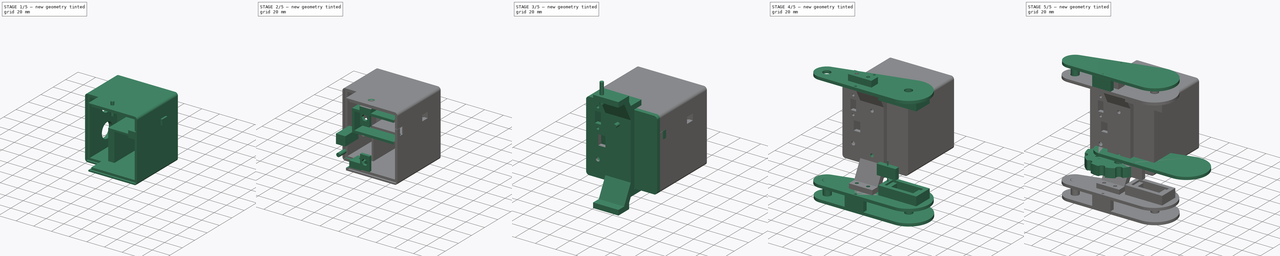
[diagram: build sequence overview — one tinted view per stage of 5, left to right]
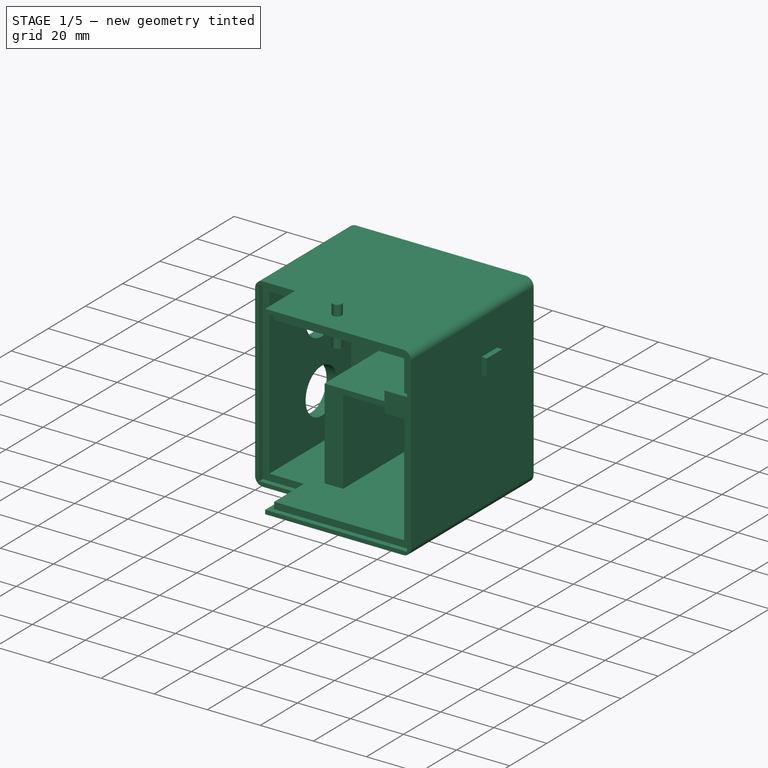
[diagram: stage 1 of 5 — iso view after this stage's code; geometry added in this stage tinted green]
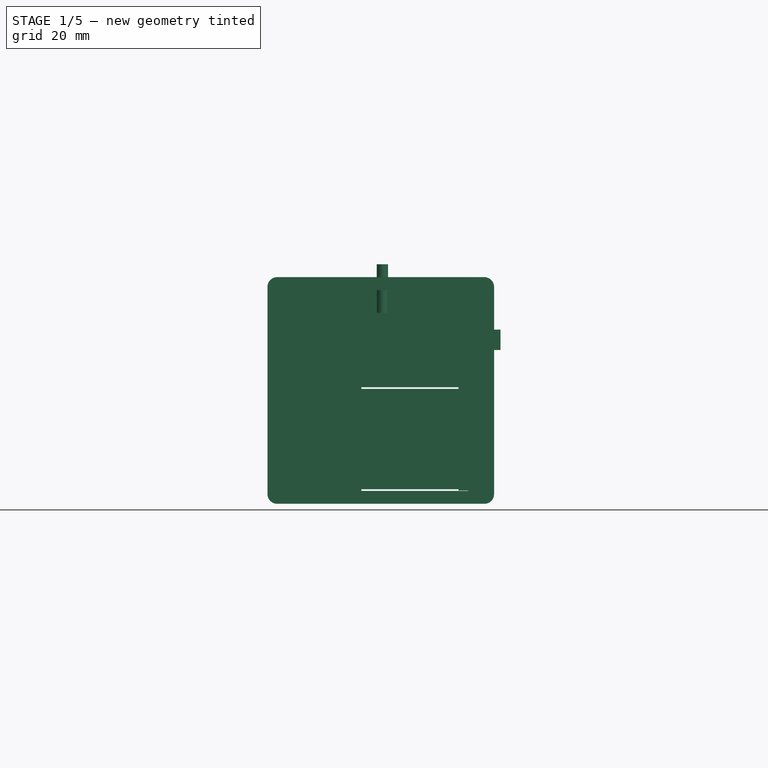
[diagram: stage 1 of 5 — front view after this stage's code; geometry added in this stage tinted green]
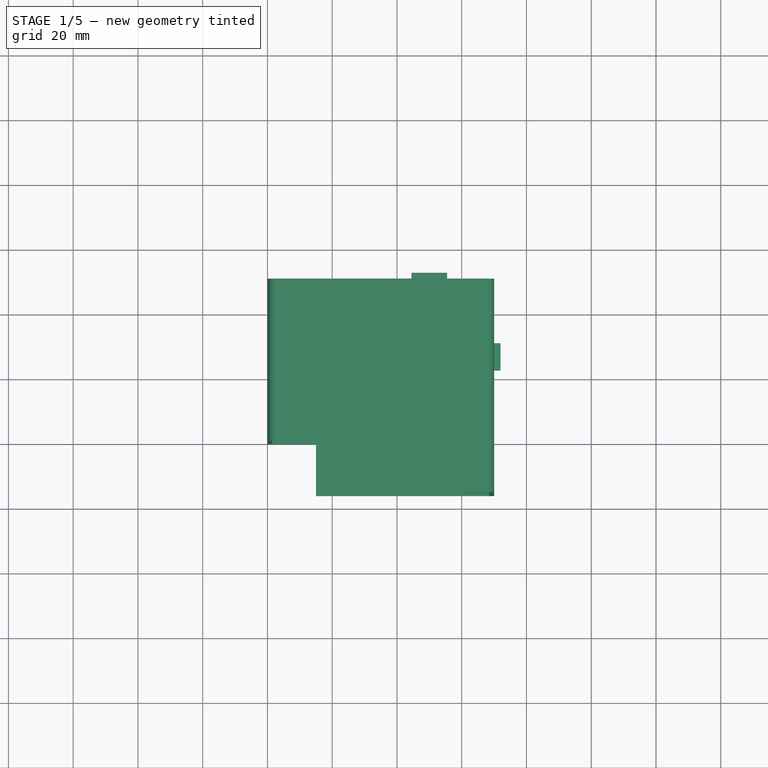
[diagram: stage 1 of 5 — top view after this stage's code; geometry added in this stage tinted green]
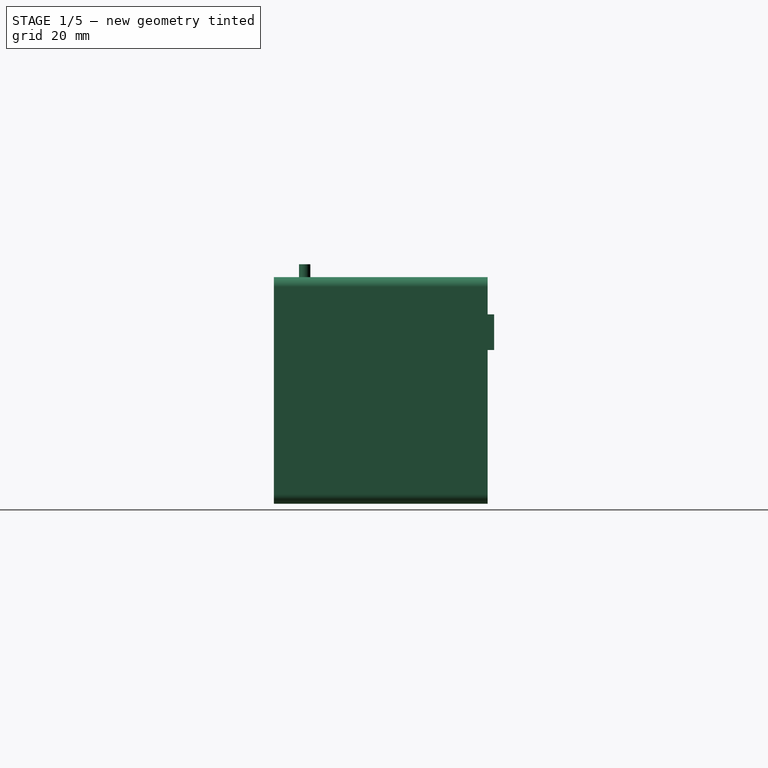
[diagram: stage 1 of 5 — right view after this stage's code; geometry added in this stage tinted green]
FCSTD DOCUMENT  (FreeCAD 0.15R4671 (Git))
Label: andromeda
License: All rights reserved
LicenseURL: http://es.wikipedia.org/wiki/Todos_los_derechos_reservados
objects: Part::Cut×77, Part::Box×65, Part::Cylinder×42, Part::MultiFuse×16, Sketcher::SketchObject×16, App::DocumentObjectGroup×10, PartDesign::Pad×10, PartDesign::Chamfer×8, PartDesign::Pocket×6, Part::Feature×3, Part::FeaturePython×2, Part::Fillet×2, Part::Mirroring×2, PartDesign::Fillet×1
note: 266 computed .brp shape members not serialized (recipe doc carries the construction recipe); baked Part::Feature solids carry a one-line shape summary decoded from their .brp

FEATURE [Sketcher::SketchObject] Sketch009
  sketch-geometry (6):
    g0: LineSegment StartX=0 StartY=20 StartZ=0 EndX=15 EndY=20 EndZ=0
    g1: LineSegment StartX=15 StartY=20 StartZ=0 EndX=15 EndY=4 EndZ=0
    g2: LineSegment StartX=15 StartY=4 StartZ=0 EndX=70 EndY=4 EndZ=0
    g3: LineSegment StartX=70 StartY=4 StartZ=0 EndX=70 EndY=70 EndZ=0
    g4: LineSegment StartX=70 StartY=70 StartZ=0 EndX=0 EndY=70 EndZ=0
    g5: LineSegment StartX=0 StartY=70 StartZ=0 EndX=0 EndY=20 EndZ=0
  constraints (18):
    c: Coincident(g0,g1)
    c: Coincident(g1,g2)
    c: Coincident(g2,g3)
    c: Coincident(g3,g4)
    c: Coincident(g4,g5)
    c: Coincident(g5,g0)
    c: Parallel(g0,g-1)
    c: Distance(g0) = 15
    c: Distance(g2) = 55
    c: Parallel(g2,g-1)
    c: Perpendicular(g2,g1)
    c: Perpendicular(g3,g2)
    c: Perpendicular(g4,g3)
    c: Perpendicular(g5,g4)
    c: Distance(g3) = 66
    c: Distance(g1) = 16
    c: DistanceX(g-1,g0) = 0
    c: DistanceY(g-1,g1) = 4
FEATURE [PartDesign::Pad] Pad005
  Length = 70
  Length2 = 100
  Sketch = -> Sketch009
  Type = 0
FEATURE [Part::Box] Box020  label="Cube020"
  Height = 62
  Length = 62
  Placement = pos=(4,66,4) rot=(1,0,0;1.5708rad)
  Width = 62
FEATURE [Part::Cut] Cut024
  Base = -> Pad005
  Tool = -> Box020
FEATURE [Part::Box] Box021  label="Cube021"
  Height = 67
  Length = 2.5
  Placement = pos=(66,4,1.5) rot=(0,0,1;0rad)
  Width = 2
FEATURE [Part::Cut] Cut025
  Base = -> Cut024
  Tool = -> Box021
FEATURE [Part::Box] Box022  label="Cube022"
  Height = 62
  Length = 2.5
  Placement = pos=(1.5,20,4) rot=(0,0,1;0rad)
  Width = 2
FEATURE [Part::Cut] Cut026
  Base = -> Cut025
  Tool = -> Box022
FEATURE [Part::Box] Box023  label="Cube023"
  Height = 51
  Length = 2.5
  Placement = pos=(15,4,4) rot=(0,1,0;1.5708rad)
  Width = 2
FEATURE [Part::Cut] Cut027
  Base = -> Cut026
  Tool = -> Box023
FEATURE [Part::Box] Box024  label="Cube024"
  Height = 51
  Length = 2.5
  Placement = pos=(15,4,68.5) rot=(0,1,0;1.5708rad)
  Width = 2
FEATURE [Part::Cut] Cut028
  Base = -> Cut027
  Tool = -> Box024
FEATURE [Part::Box] Box025  label="Cube025"
  Height = 14
  Length = 2
  Placement = pos=(15,20,66) rot=(1,0,0;1.5708rad)
  Width = 2.5
FEATURE [Part::Box] Box026  label="Cube026"
  Height = 14
  Length = 2
  Placement = pos=(15,20,1.5) rot=(1,0,0;1.5708rad)
  Width = 2.5
FEATURE [Part::Cut] Cut029
  Base = -> Cut028
  Tool = -> Box025
FEATURE [Part::Cut] Cut030
  Base = -> Cut029
  Tool = -> Box026
FEATURE [Part::Box] Box027  label="Cube027"
  Height = 2.5
  Length = 15.5
  Placement = pos=(1.5,20,1.5) rot=(0,0,1;0rad)
  Width = 2
FEATURE [Part::Cut] Cut031
  Base = -> Cut030
  Tool = -> Box027
FEATURE [Part::Box] Box028  label="Cube028"
  Height = 2.5
  Length = 15.5
  Placement = pos=(1.5,20,66) rot=(0,0,1;0rad)
  Width = 2
FEATURE [Part::Cut] Cut032
  Base = -> Cut031
  Tool = -> Box028
FEATURE [Sketcher::SketchObject] Sketch010
  Placement = pos=(0,0,0) rot=(0.57735,-0.57735,-0.57735;2.0944rad)
  Support = -> Cut032 [Face11]
  sketch-geometry (2):
    g0: Circle CenterX=-50 CenterY=21.5 CenterZ=0 NormalX=0 NormalY=0 NormalZ=1 Radius=8.5
    g1: Circle CenterX=-50 CenterY=48.5 CenterZ=0 NormalX=0 NormalY=0 NormalZ=1 Radius=8.5
  constraints (6):
    c: Radius(g0) = 8.5
    c: Radius(g1) = 8.5
    c: Distance(g0,g1) = 27
    c: DistanceX(g-2,g1) = -50
    c: DistanceX(g-2,g0) = -50
    c: DistanceY(g-1,g0) = 21.5
FEATURE [PartDesign::Pocket] Pocket002004
  Length = 5
  Sketch = -> Sketch010
  Type = 0
FEATURE [Sketcher::SketchObject] Sketch011
  Placement = pos=(0,70,0) rot=(0,0.707107,0.707107;3.14159rad)
  Support = -> Pocket002004 [Face14]
  sketch-geometry (4):
    g0: LineSegment StartX=-68 StartY=36 StartZ=0 EndX=-23 EndY=36 EndZ=0
    g1: LineSegment StartX=-23 StartY=36 StartZ=0 EndX=-23 EndY=4 EndZ=0
    g2: LineSegment StartX=-23 StartY=4 StartZ=0 EndX=-68 EndY=4 EndZ=0
    g3: LineSegment StartX=-68 StartY=4 StartZ=0 EndX=-68 EndY=36 EndZ=0
  constraints (12):
    c: Coincident(g0,g1)
    c: Coincident(g1,g2)
    c: Coincident(g2,g3)
    c: Coincident(g3,g0)
    c: Horizontal(g0)
    c: Horizontal(g2)
    c: Vertical(g1)
    c: Vertical(g3)
    c: Distance(g0) = 45
    c: Distance(g3) = 32
    c: DistanceY(g-1,g2) = 4
    c: DistanceX(g-2,g0) = -68
FEATURE [PartDesign::Pocket] Pocket002005
  Length = 4
  Sketch = -> Sketch011
  Type = 0
FEATURE [Part::Box] Box031  label="Cube031"
  Height = 2
  Length = 39
  Placement = pos=(25,26,36) rot=(0,0,1;0rad)
  Width = 40
FEATURE [Part::Box] Box032  label="Cube032"
  Height = 7
  Length = 34
  Placement = pos=(22,26,38) rot=(0,1,0;1.5708rad)
  Width = 40
FEATURE [Part::Box] Box033  label="Cube033"
  Height = 4
  Length = 34
  Placement = pos=(62,26,38) rot=(0,1,0;1.5708rad)
  Width = 40
FEATURE [Part::Cylinder] Cylinder015  label="Cylinder050"
  Angle = 360
  Height = 15
  Placement = pos=(65,67,20) rot=(1,0,0;1.5708rad)
  Radius = 1.7
FEATURE [Part::Cylinder] Cylinder016  label="Cylinder051"
  Angle = 360
  Height = 15
  Placement = pos=(26,67,20) rot=(1,0,0;1.5708rad)
  Radius = 1.7
FEATURE [Part::MultiFuse] Fusion007
  Shapes = -> [Pocket002005,Box031,Box032,Box033]
FEATURE [Part::Cut] Cut033
  Base = -> Fusion007
  Tool = -> Cylinder015
FEATURE [Part::Cut] Cut034
  Base = -> Cut033
  Tool = -> Cylinder016
FEATURE [Part::Box] Box034  label="Cube034"
  Height = 6
  Length = 8
  Placement = pos=(60,61,17) rot=(0,0,1;0rad)
  Width = 3
FEATURE [Part::Box] Box035  label="Cube035"
  Height = 6
  Length = 8
  Placement = pos=(22,61,17) rot=(0,0,1;0rad)
  Width = 3
FEATURE [Part::Cut] Cut035
  Base = -> Cut034
  Tool = -> Box034
FEATURE [Part::Cut] Cut036  label="Compartimento Pilas"
  Base = -> Cut035
  Tool = -> Box035
FEATURE [Part::Fillet] Fillet
  Base = -> Cut036
  Edges = 4 edges r=3: [Edge13,Edge15,Edge37,Edge39]
FEATURE [App::DocumentObjectGroup] Group008  label="Puente"
  Group = -> [Cut048,Chamfer006]
FEATURE [Part::Cylinder] Cylinder035  label="Cylinder067"
  Angle = 360
  Height = 15
  Placement = pos=(35.5,13.5,59) rot=(0,0,1;0rad)
  Radius = 1.75
FEATURE [Part::Box] Box064  label="Cube063"
  Height = 7.7
  Length = 10
  Placement = pos=(60,4,46.5) rot=(0,0,1;0rad)
  Width = 8.5
FEATURE [Part::Box] Box065  label="Cube064"
  Height = 17.78
  Length = 3
  Placement = pos=(66,6,41.5) rot=(0,0,1;0rad)
  Width = 7.5
FEATURE [Part::Box] Box066  label="Cube065"
  Height = 12
  Length = 3
  Placement = pos=(66,13.5,44.5) rot=(0,0,1;0rad)
  Width = 3.5
FEATURE [Part::Box] Box075  label="Cube074"
  Height = 11
  Length = 11
  Placement = pos=(44.5,62,47.5) rot=(0,0,1;0rad)
  Width = 10
FEATURE [Part::Box] Box077  label="Cube076"
  Height = 6.3
  Length = 8
  Placement = pos=(64,42,47.5) rot=(0,0,1;0rad)
  Width = 8.3
FEATURE [Part::Box] Box078  label="Cube077"
  Height = 32
  Length = 5
  Placement = pos=(59,26,4.1) rot=(0,0,1;0rad)
  Width = 28
FEATURE [App::DocumentObjectGroup] Group005  label="Cabeza - parte alta"
  Group = -> [Cut032,Pocket002004,Cut036,Cut071,Cut073,Cut089]
FEATURE [Part::Box] Box080  label="TapaPilasOriginal"
  Height = 31
  Length = 44
  Placement = pos=(23.5,68,4.5) rot=(0,0,1;0rad)
  Width = 2
FEATURE [Part::Cylinder] Cylinder043  label="Cylinder075"
  Angle = 360
  Height = 10
  Placement = pos=(26,70,20) rot=(1,0,0;1.5708rad)
  Radius = 1.7
FEATURE [Part::Cylinder] Cylinder044  label="Cylinder076"
  Angle = 360
  Height = 10
  Placement = pos=(65,70,20) rot=(1,0,0;1.5708rad)
  Radius = 1.7
FEATURE [Part::Cut] Cut090  label="Cut095"
  Base = -> Box080
  Tool = -> Cylinder044
FEATURE [Part::Cut] Cut091  label="Tapa Pilas"
  Base = -> Cut090
  Tool = -> Cylinder043
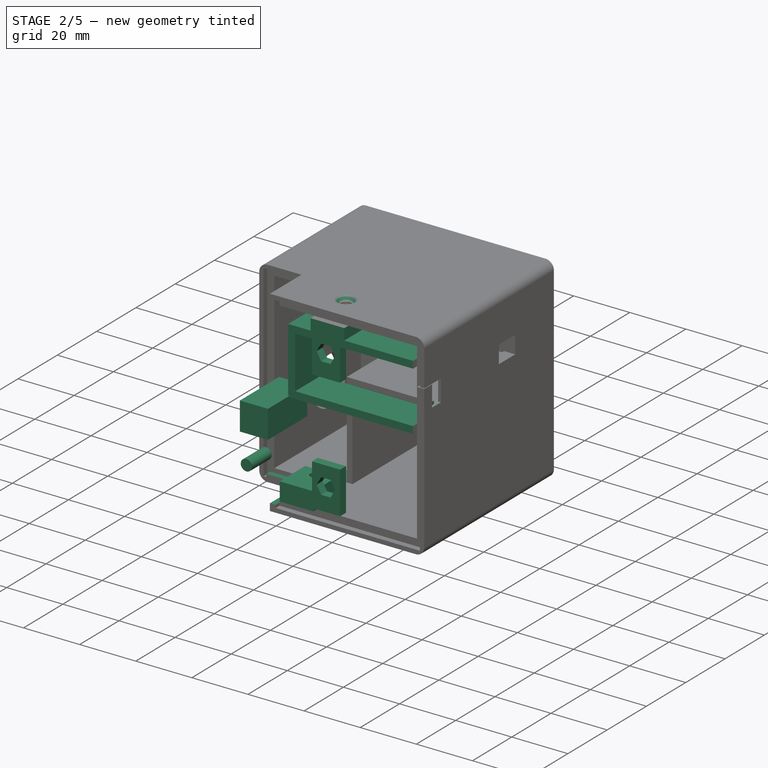
[diagram: stage 2 of 5 — iso view after this stage's code; geometry added in this stage tinted green]
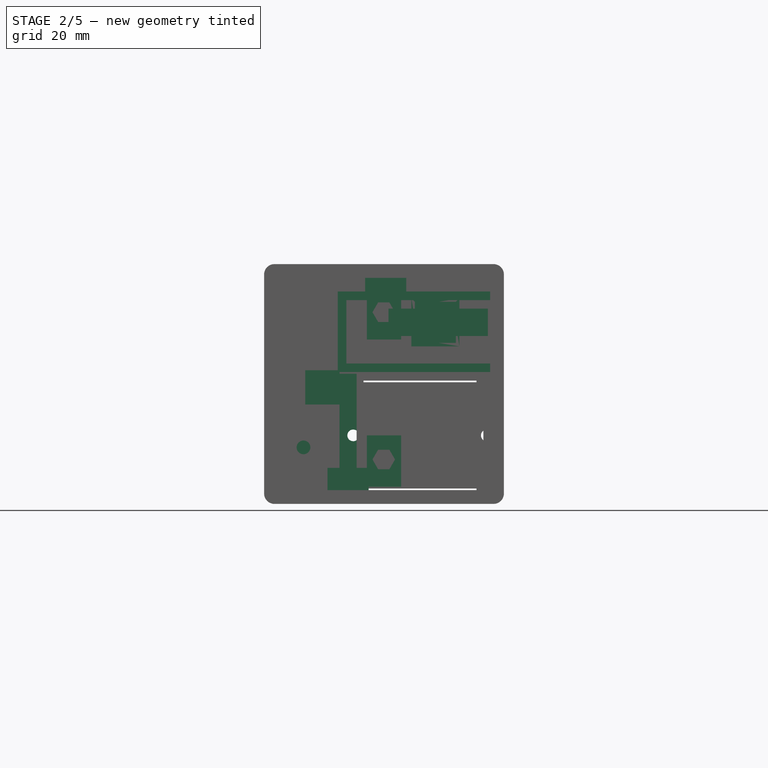
[diagram: stage 2 of 5 — front view after this stage's code; geometry added in this stage tinted green]
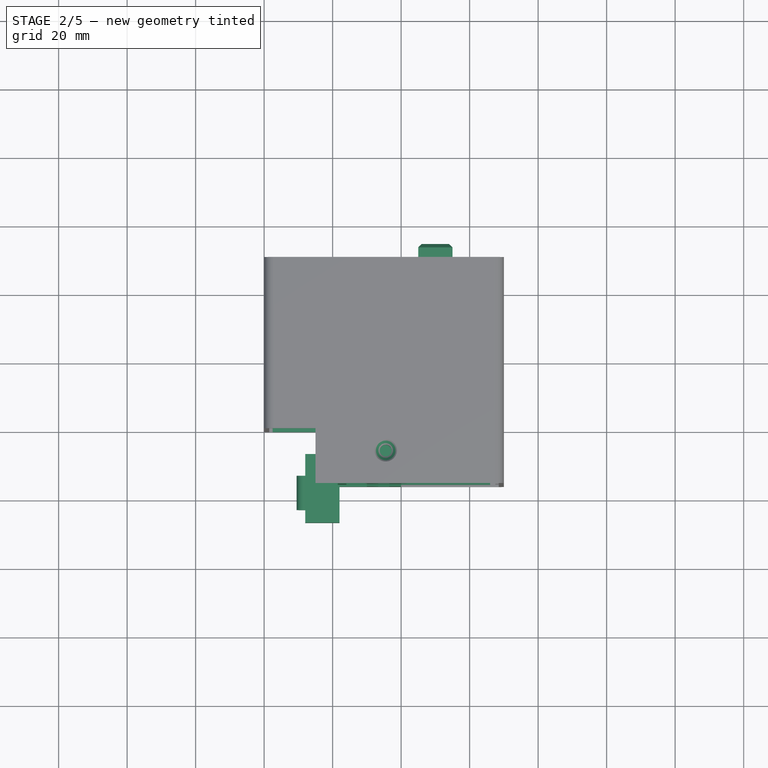
[diagram: stage 2 of 5 — top view after this stage's code; geometry added in this stage tinted green]
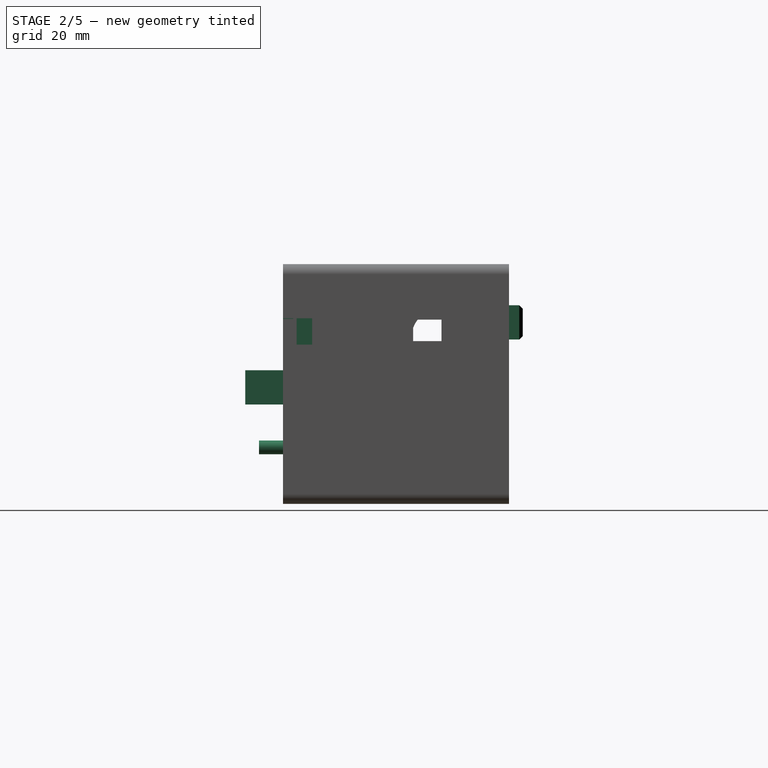
[diagram: stage 2 of 5 — right view after this stage's code; geometry added in this stage tinted green]
FEATURE [Part::Box] Box018  label="Cube018"
  Height = 18
  Length = 2
  Placement = pos=(15,22,0) rot=(1,0,0;1.5708rad)
  Width = 2.5
FEATURE [Part::Box] Box019  label="Cube019"
  Height = 12.5
  Length = 2.5
  Placement = pos=(2.5,20,2.5) rot=(0,1,0;1.5708rad)
  Width = 2
FEATURE [Part::Box] Box039  label="Cube038"
  Height = 15
  Length = 10
  Placement = pos=(30,4,5) rot=(0,0,1;0rad)
  Width = 3
FEATURE [Part::Feature] Cut052_solid  label="Tuerca puente (Solid)"
  Placement = pos=(0,0,-111) rot=(0,0,1;0rad)
  shape: bbox 25 x 10 x 5 mm, 20 faces (baked)
FEATURE [Sketcher::SketchObject] Sketch013
  Placement = pos=(-6,7,1.5) rot=(1,0,0;1.5708rad)
  sketch-geometry (7):
    g0: LineSegment StartX=42.5715 StartY=14.3176 StartZ=0 EndX=39.2806 EndY=14.3176 EndZ=0
    g1: LineSegment StartX=39.2806 StartY=14.3176 StartZ=0 EndX=37.6352 EndY=11.4676 EndZ=0
    g2: LineSegment StartX=37.6352 StartY=11.4676 StartZ=0 EndX=39.2806 EndY=8.61756 EndZ=0
    g3: LineSegment StartX=39.2806 StartY=8.61756 StartZ=0 EndX=42.5715 EndY=8.61756 EndZ=0
    g4: LineSegment StartX=42.5715 StartY=8.61756 StartZ=0 EndX=44.217 EndY=11.4676 EndZ=0
    g5: LineSegment StartX=44.217 StartY=11.4676 StartZ=0 EndX=42.5715 EndY=14.3176 EndZ=0
    g6: Circle [constr] CenterX=40.9261 CenterY=11.4676 CenterZ=0 NormalX=0 NormalY=0 NormalZ=1 Radius=3.2909
  constraints (15):
    c: Coincident(g0,g1)
    c: Coincident(g1,g2)
    c: Coincident(g2,g3)
    c: Coincident(g3,g4)
    c: Coincident(g4,g5)
    c: Coincident(g5,g0)
    c: Equal(g0, g1-g5) x5
    c: PointOnObject(g0,g6)
    c: PointOnObject(g1,g6)
    c: PointOnObject(g2,g6)
    c: PointOnObject(g3,g6)
    c: PointOnObject(g4,g6)
    c: PointOnObject(g5,g6)
    c: Distance(g6,g2) = 2.85
    c: Parallel(g3,g-1)
FEATURE [PartDesign::Pad] Pad007
  Length = 3
  Length2 = 100
  Placement = pos=(-6,7,1.5) rot=(1,0,0;1.5708rad)
  Sketch = -> Sketch013
  Type = 0
FEATURE [Part::Cut] Cut053
  Base = -> Box039
  Placement = pos=(0,0,43) rot=(0,0,1;0rad)
  Tool = -> Pad007
FEATURE [Part::Cut] Cut054
  Base = -> Box039
  Tool = -> Pad007
FEATURE [App::DocumentObjectGroup] Group007  label="Porta pilas"
  Group = -> [Box048,Fillet002]
FEATURE [Part::Box] Box053  label="Cube052"
  Height = 6.5
  Length = 12
  Placement = pos=(29.5,4,59.5) rot=(0,0,1;0rad)
  Width = 13
FEATURE [Sketcher::SketchObject] Sketch017
  Placement = pos=(-5.5,2,61.5) rot=(0,0,1;0rad)
  sketch-geometry (7):
    g0: LineSegment StartX=42.5715 StartY=14.3176 StartZ=0 EndX=39.2806 EndY=14.3176 EndZ=0
    g1: LineSegment StartX=39.2806 StartY=14.3176 StartZ=0 EndX=37.6352 EndY=11.4676 EndZ=0
    g2: LineSegment StartX=37.6352 StartY=11.4676 StartZ=0 EndX=39.2806 EndY=8.61756 EndZ=0
    g3: LineSegment StartX=39.2806 StartY=8.61756 StartZ=0 EndX=42.5715 EndY=8.61756 EndZ=0
    g4: LineSegment StartX=42.5715 StartY=8.61756 StartZ=0 EndX=44.217 EndY=11.4676 EndZ=0
    g5: LineSegment StartX=44.217 StartY=11.4676 StartZ=0 EndX=42.5715 EndY=14.3176 EndZ=0
    g6: Circle [constr] CenterX=40.9261 CenterY=11.4676 CenterZ=0 NormalX=0 NormalY=0 NormalZ=1 Radius=3.2909
  constraints (15):
    c: Coincident(g0,g1)
    c: Coincident(g1,g2)
    c: Coincident(g2,g3)
    c: Coincident(g3,g4)
    c: Coincident(g4,g5)
    c: Coincident(g5,g0)
    c: Equal(g0, g1-g5) x5
    c: PointOnObject(g0,g6)
    c: PointOnObject(g1,g6)
    c: PointOnObject(g2,g6)
    c: PointOnObject(g3,g6)
    c: PointOnObject(g4,g6)
    c: PointOnObject(g5,g6)
    c: Distance(g6,g2) = 2.85
    c: Parallel(g3,g-1)
FEATURE [PartDesign::Pad] Pad011
  Length = 3
  Length2 = 100
  Placement = pos=(-5.5,2,61.5) rot=(0,0,1;0rad)
  Sketch = -> Sketch017
  Type = 0
FEATURE [Part::Box] Box055  label="Cube054"
  Height = 3
  Length = 6.5
  Placement = pos=(32.2,13.5,61.5) rot=(0,0,1;0rad)
  Width = 10
FEATURE [Part::Cylinder] Cylinder032  label="Cylinder064"
  Angle = 360
  Height = 10
  Placement = pos=(35.5,13.5,59) rot=(0,0,1;0rad)
  Radius = 1.75
FEATURE [Part::Cut] Cut066
  Base = -> Box053
  Tool = -> Pad011
FEATURE [Part::Cut] Cut067
  Base = -> Cut066
  Tool = -> Box055
FEATURE [Part::Cut] Cut068
  Base = -> Cut067
  Placement = pos=(60,0,70) rot=(0,1,0;3.14159rad)
  Tool = -> Cylinder032
FEATURE [Part::Cut] Cut069
  Base = -> Cut067
  Tool = -> Cylinder032
FEATURE [Part::Cylinder] Cylinder036  label="Cylinder068"
  Angle = 360
  Height = 15
  Placement = pos=(24.5,13.5,-4) rot=(0,0,1;0rad)
  Radius = 1.75
FEATURE [Part::Cut] Cut072
  Base = -> Fillet
  Tool = -> Cylinder035
FEATURE [Part::Cut] Cut073  label="Cut092"
  Base = -> Cut072
  Tool = -> Cylinder036
FEATURE [PartDesign::Chamfer] Chamfer007
  Base = -> Cut073 [Edge40,Edge18]
  Size = 1.5
FEATURE [Part::Box] Box056  label="Cube055"
  Height = 10
  Length = 10
  Placement = pos=(12,-7,29) rot=(0,0,1;0rad)
  Width = 20
FEATURE [Part::Box] Box059  label="Cube058"
  Height = 23.5
  Length = 2.5
  Placement = pos=(21.5,4,38.5) rot=(0,0,1;0rad)
  Width = 13
FEATURE [Part::Box] Box060  label="Cube059"
  Height = 2.5
  Length = 44
  Placement = pos=(22,4,38.5) rot=(0,0,1;0rad)
  Width = 13
FEATURE [Part::Box] Box061  label="Cube060"
  Height = 2.5
  Length = 7.5
  Placement = pos=(22,4,59.5) rot=(0,0,1;0rad)
  Width = 13
FEATURE [Part::Box] Box062  label="Cube061"
  Height = 2.5
  Length = 24.5
  Placement = pos=(41.5,4,59.5) rot=(0,0,1;0rad)
  Width = 13
FEATURE [Part::Cut] Cut076
  Base = -> Chamfer007
  Tool = -> Box064
FEATURE [Part::Cut] Cut077
  Base = -> Cut076
  Tool = -> Box065
FEATURE [Part::Cut] Cut078
  Base = -> Cut077
  Tool = -> Box066
FEATURE [Part::Cylinder] Cylinder038  label="Cylinder070"
  Angle = 360
  Height = 10
  Placement = pos=(11.5,7,16.5) rot=(1,0,0;1.5708rad)
  Radius = 2
FEATURE [Part::Box] Box070  label="Cube069"
  Height = 23.5
  Length = 1.5
  Placement = pos=(66,6,38.5) rot=(0,0,1;0rad)
  Width = 6.5
FEATURE [Part::Box] Box071  label="Cube070"
  Height = 7.7
  Length = 10
  Placement = pos=(60,8,46.4) rot=(0,0,1;0rad)
  Width = 4.5
FEATURE [Part::Cut] Cut084
  Base = -> Box070
  Tool = -> Box071
FEATURE [Part::Box] Box072  label="Cube071"
  Height = 7.5
  Length = 2.5
  Placement = pos=(67.5,4,46.5) rot=(0,0,1;0rad)
  Width = 4
FEATURE [App::DocumentObjectGroup] Group004  label="Cabeza - parte baja"
  Group = -> [Cut023,Pocket002003,Fusion022]
FEATURE [Part::Box] Box073  label="Cube072"
  Height = 10
  Length = 10
  Placement = pos=(-35,0,2) rot=(0,0,1;0rad)
  Width = 10
FEATURE [Part::Box] Box074  label="Cube073"
  Height = 14
  Length = 14
  Placement = pos=(-37,0,0) rot=(0,0,1;0rad)
  Width = 2
FEATURE [Part::MultiFuse] Fusion023  label="BotonBase"
  Placement = pos=(80,64,46) rot=(0,0,1;0rad)
  Shapes = -> [Box073,Box074]
FEATURE [PartDesign::Chamfer] Chamfer008
  Base = -> Fusion023 [Edge4,Edge1,Edge2,Edge3]
  Placement = pos=(80,64,46) rot=(0,0,1;0rad)
  Size = 1
FEATURE [Part::Cut] Cut085
  Base = -> Cut078
  Tool = -> Box075
FEATURE [Part::Box] Box076  label="Cube075"
  Height = 12
  Length = 12
  Placement = pos=(0,71,0) rot=(0,0,1;0rad)
  Width = 3
FEATURE [Part::Cylinder] Cylinder041  label="Cylinder073"
  Angle = 360
  Height = 10
  Placement = pos=(50,72,53) rot=(1,0,0;1.5708rad)
  Radius = 0.7
FEATURE [Part::Cut] Cut086
  Base = -> Chamfer008
  Tool = -> Cylinder041
FEATURE [App::DocumentObjectGroup] Group009  label="Boton"
  Group = -> [Fusion023,Cut086]
FEATURE [Part::Cylinder] Cylinder042  label="Cylinder074"
  Angle = 360
  Height = 1
  Placement = pos=(6,75,6) rot=(1,0,0;1.5708rad)
  Radius = 3.5
FEATURE [Part::MultiFuse] Fusion024  label="Microinterruptor"
  Placement = pos=(44,-12.5,47) rot=(0,0,1;0rad)
  Shapes = -> [Cylinder042,Box076]
FEATURE [App::DocumentObjectGroup] Group006  label="Emsamblaje"
  Group = -> [Cut052_solid,Group007,Fusion020,Fusion024]
FEATURE [Sketcher::SketchObject] Sketch018
  Placement = pos=(48,63,57) rot=(1,0,0;3.14159rad)
  sketch-geometry (8):
    g0: LineSegment StartX=-11.6878 StartY=9.49409 StartZ=0 EndX=-11.6878 EndY=-3.00591 EndZ=0
    g1: LineSegment StartX=-11.6878 StartY=-3.00591 StartZ=0 EndX=-6.68781 EndY=-3.00591 EndZ=0
    g2: LineSegment StartX=-6.68781 StartY=-3.00591 StartZ=0 EndX=-6.68781 EndY=4.49409 EndZ=0
    g3: LineSegment StartX=-6.68781 StartY=4.49409 StartZ=0 EndX=12.3122 EndY=4.49409 EndZ=0
    g4: LineSegment StartX=12.3122 StartY=4.49409 StartZ=0 EndX=12.3122 EndY=-3.00591 EndZ=0
    g5: LineSegment StartX=12.3122 StartY=-3.00591 StartZ=0 EndX=17.3122 EndY=-3.00591 EndZ=0
    g6: LineSegment StartX=17.3122 StartY=-3.00591 StartZ=0 EndX=17.3122 EndY=9.49409 EndZ=0
    g7: LineSegment StartX=17.3122 StartY=9.49409 StartZ=0 EndX=-11.6878 EndY=9.49409 EndZ=0
  constraints (22):
    c: Coincident(g0,g1)
    c: Coincident(g1,g2)
    c: Coincident(g2,g3)
    c: Coincident(g3,g4)
    c: Coincident(g4,g5)
    c: Coincident(g5,g6)
    c: Coincident(g6,g7)
    c: Coincident(g7,g0)
    c: Horizontal(g7)
    c: Vertical(g6)
    c: Distance(g2) = 7.5
    c: Distance(g4) = 7.5
    c: Horizontal(g1)
    c: Horizontal(g5)
    c: Vertical(g2)
    c: Vertical(g4)
    c: Vertical(g0)
    c: Horizontal(g3)
    c: Distance(g5) = 5
    c: Distance(g1) = 5
    c: Distance(g3) = 19
    c: Distance(g6) = 12.5
FEATURE [PartDesign::Pad] Pad012  label="Brida Microinterruptor"
  Length = 8
  Length2 = 100
  Placement = pos=(48,63,57) rot=(1,0,0;3.14159rad)
  Sketch = -> Sketch018
  Type = 0
FEATURE [Part::Cut] Cut087  label="Agujero Infrarrojo"
  Base = -> Cut085
  Tool = -> Box077
FEATURE [Part::Box] Box079  label="Cube078"
  Height = 34
  Length = 5
  Placement = pos=(22,26,4.1) rot=(0,0,1;0rad)
  Width = 29
FEATURE [Part::Cut] Cut088  label="Cut093"
  Base = -> Cut087
  Tool = -> Box078
FEATURE [Part::Cut] Cut089  label="Cut094"
  Base = -> Cut088
  Tool = -> Box079
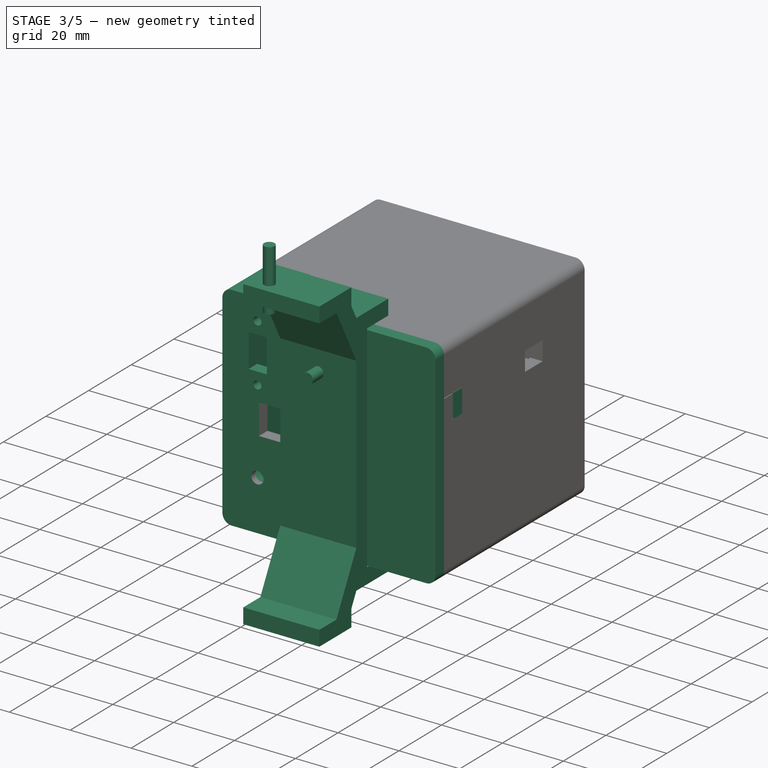
[diagram: stage 3 of 5 — iso view after this stage's code; geometry added in this stage tinted green]
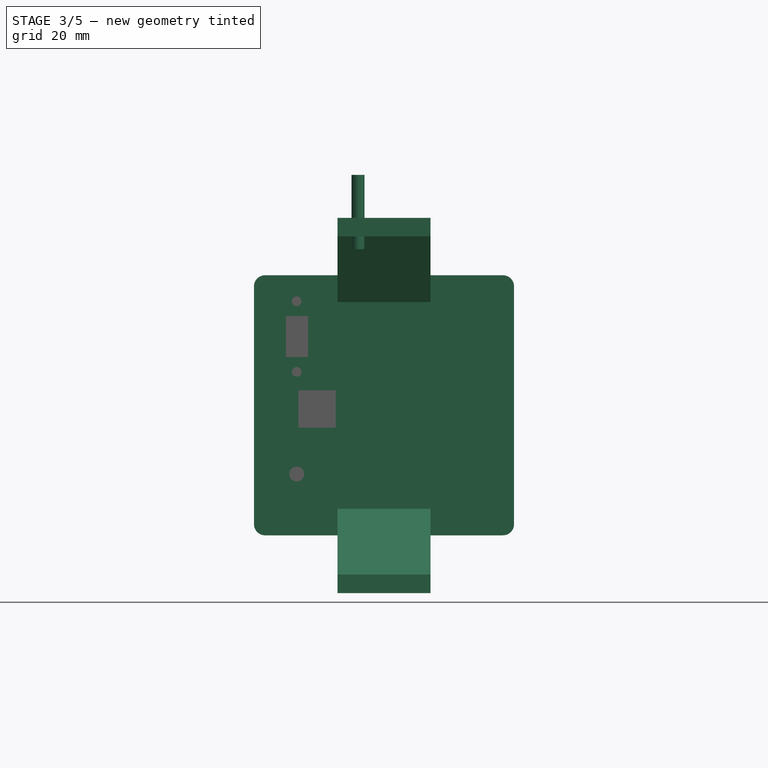
[diagram: stage 3 of 5 — front view after this stage's code; geometry added in this stage tinted green]
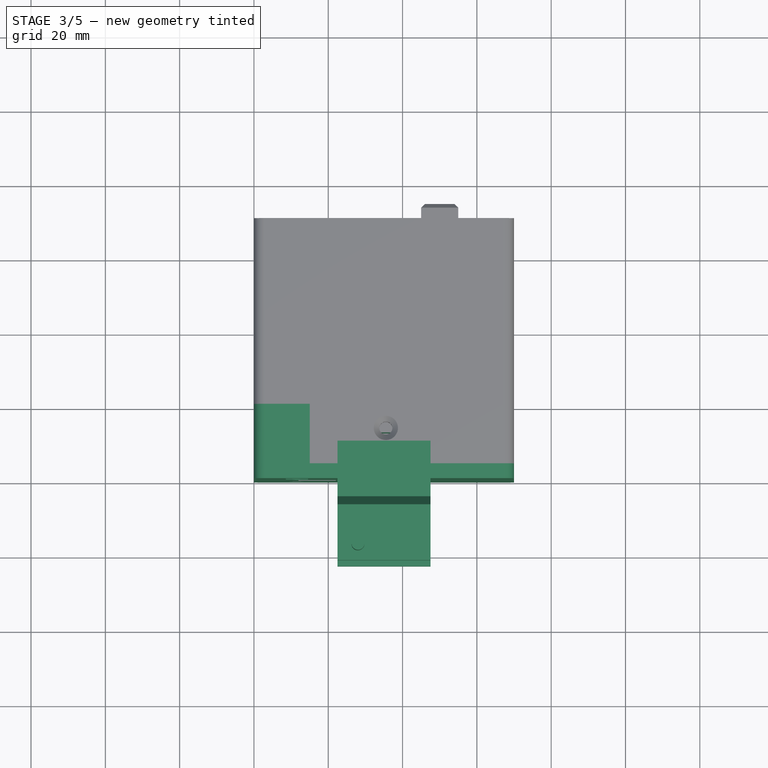
[diagram: stage 3 of 5 — top view after this stage's code; geometry added in this stage tinted green]
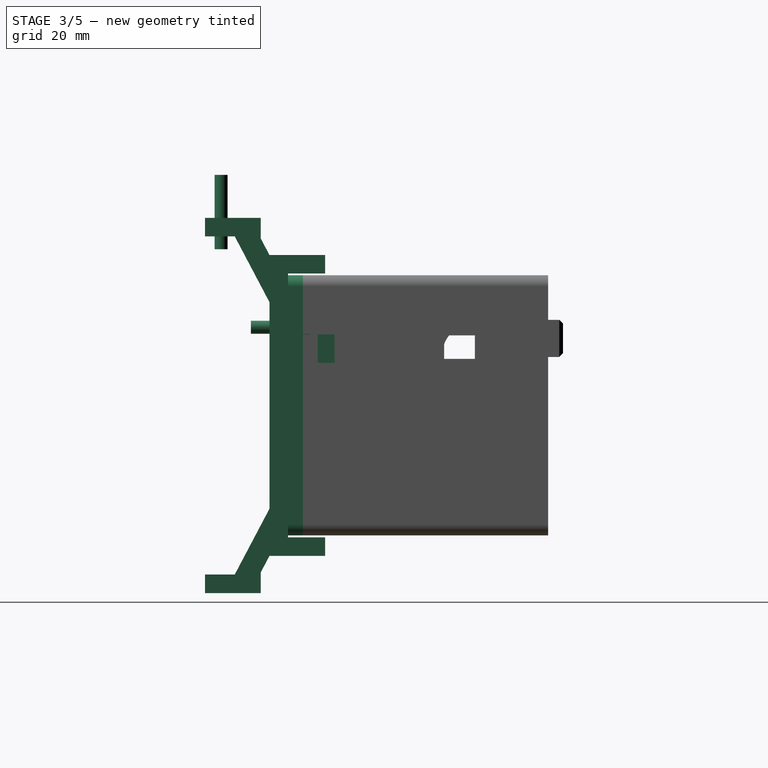
[diagram: stage 3 of 5 — right view after this stage's code; geometry added in this stage tinted green]
FEATURE [Sketcher::SketchObject] Sketch007
  sketch-geometry (6):
    g0: LineSegment StartX=0 StartY=22 StartZ=0 EndX=0 EndY=0 EndZ=0
    g1: LineSegment StartX=0 StartY=0 StartZ=0 EndX=70 EndY=0 EndZ=0
    g2: LineSegment StartX=70 StartY=0 StartZ=0 EndX=70 EndY=6 EndZ=0
    g3: LineSegment StartX=70 StartY=6 StartZ=0 EndX=17 EndY=6 EndZ=0
    g4: LineSegment StartX=17 StartY=6 StartZ=0 EndX=17 EndY=22 EndZ=0
    g5: LineSegment StartX=17 StartY=22 StartZ=0 EndX=0 EndY=22 EndZ=0
  constraints (17):
    c: Coincident(g0,g1)
    c: Coincident(g1,g2)
    c: Coincident(g2,g3)
    c: Coincident(g3,g4)
    c: Coincident(g4,g5)
    c: Coincident(g5,g0)
    c: Horizontal(g1)
    c: Horizontal(g3)
    c: Vertical(g4)
    c: Horizontal(g5)
    c: Vertical(g0)
    c: Vertical(g2)
    c: Distance(g1) = 70
    c: Distance(g0) = 22
    c: Distance(g2) = 6
    c: Distance(g5) = 17
    c: Coincident(g0,g-1)
FEATURE [PartDesign::Pad] Pad004
  Length = 70
  Length2 = 100
  Sketch = -> Sketch007
  Type = 0
FEATURE [Part::Box] Box011  label="Cube011"
  Height = 25
  Length = 62
  Placement = pos=(4,29,4) rot=(1,0,0;1.5708rad)
  Width = 62
FEATURE [Part::Cut] Cut015
  Base = -> Pad004
  Tool = -> Box011
FEATURE [Part::Box] Box012  label="Cube012"
  Height = 70
  Length = 2.5
  Placement = pos=(0,20,0) rot=(0,0,1;0rad)
  Width = 2
FEATURE [Part::Cut] Cut016
  Base = -> Cut015
  Tool = -> Box012
FEATURE [Part::Box] Box013  label="Cube013"
  Height = 70
  Length = 2.5
  Placement = pos=(67.5,4,0) rot=(0,0,1;0rad)
  Width = 2
FEATURE [Part::Cut] Cut017
  Base = -> Cut016
  Tool = -> Box013
FEATURE [Part::Box] Box014  label="Cube014"
  Height = 50.5
  Length = 2.5
  Placement = pos=(17,4,70) rot=(0,1,0;1.5708rad)
  Width = 2
FEATURE [Part::Cut] Cut018
  Base = -> Cut017
  Tool = -> Box014
FEATURE [Part::Box] Box015  label="Cube015"
  Height = 18
  Length = 2
  Placement = pos=(15,22,67.5) rot=(1,0,0;1.5708rad)
  Width = 2.5
FEATURE [Part::Cut] Cut019
  Base = -> Cut018
  Tool = -> Box015
FEATURE [Part::Box] Box016  label="Cube016"
  Height = 12.5
  Length = 2.5
  Placement = pos=(2.5,20,70) rot=(0,1,0;1.5708rad)
  Width = 2
FEATURE [Part::Cut] Cut020
  Base = -> Cut019
  Tool = -> Box016
FEATURE [Part::Box] Box017  label="Cube017"
  Height = 50.5
  Length = 2.5
  Placement = pos=(17,4,2.5) rot=(0,1,0;1.5708rad)
  Width = 2
FEATURE [Part::Cut] Cut021
  Base = -> Cut020
  Tool = -> Box017
FEATURE [Part::Cut] Cut022
  Base = -> Cut021
  Tool = -> Box018
FEATURE [Part::Cut] Cut023
  Base = -> Cut022
  Tool = -> Box019
FEATURE [Sketcher::SketchObject] Sketch008
  Placement = pos=(0,0,0) rot=(0.57735,-0.57735,-0.57735;2.0944rad)
  Support = -> Cut023 [Face1]
  sketch-geometry (4):
    g0: ArcOfCircle CenterX=-22 CenterY=35 CenterZ=0 NormalX=0 NormalY=0 NormalZ=1 Radius=18.2003 StartAngle=4.99069 EndAngle=7.57568
    g1: ArcOfCircle CenterX=-22 CenterY=35 CenterZ=0 NormalX=0 NormalY=0 NormalZ=1 Radius=13.4629 StartAngle=5.0929 EndAngle=7.47348
    g2: LineSegment StartX=-17 StartY=17.5 StartZ=0 EndX=-17 EndY=22.5 EndZ=0
    g3: LineSegment StartX=-17 StartY=47.5 StartZ=0 EndX=-17 EndY=52.5 EndZ=0
  constraints (13):
    c: DistanceX(g-2,g0) = -17
    c: DistanceX(g-2,g0) = -17
    c: Distance(g0,g0) = 35
    c: DistanceY(g-1,g0) = 35
    c: DistanceX(g-2,g1) = -22
    c: Distance(g1,g1) = 25
    c: DistanceX(g-2,g1) = -17
    c: DistanceX(g-2,g1) = -17
    c: Coincident(g1,g0)
    c: Coincident(g2,g0)
    c: Coincident(g2,g1)
    c: Coincident(g3,g1)
    c: Coincident(g3,g0)
FEATURE [PartDesign::Pocket] Pocket002003
  Length = 3
  Sketch = -> Sketch008
  Type = 0
FEATURE [Part::Fillet] Fillet001
  Base = -> Pocket002003
  Edges = 4 edges r=3: [Edge1,Edge4,Edge10,Edge23]
FEATURE [Sketcher::SketchObject] Sketch012
  Placement = pos=(47.5,0,-0.5) rot=(0,-1,0;1.5708rad)
  sketch-geometry (20):
    g0: LineSegment StartX=-0.0465772 StartY=10.0017 StartZ=0 EndX=-0.0465772 EndY=0.00170679 EndZ=0
    g1: LineSegment StartX=-0.0465772 StartY=0.00170679 StartZ=0 EndX=70.9534 EndY=0.00170679 EndZ=0
    g2: LineSegment StartX=70.9534 StartY=0.00170679 StartZ=0 EndX=70.9534 EndY=10.0017 EndZ=0
    g3: LineSegment StartX=70.9534 StartY=10.0017 StartZ=0 EndX=75.9534 EndY=10.0017 EndZ=0
    g4: LineSegment StartX=80.3756 StartY=-7.33163 StartZ=0 EndX=85.9534 EndY=-7.33163 EndZ=0
    g5: LineSegment StartX=85.9534 StartY=-7.33163 StartZ=0 EndX=85.9534 EndY=-22.3316 EndZ=0
    g6: LineSegment StartX=85.9534 StartY=-22.3316 StartZ=0 EndX=80.9534 EndY=-22.3316 EndZ=0
    g7: LineSegment StartX=80.9534 StartY=-22.3316 StartZ=0 EndX=80.9534 EndY=-14.3316 EndZ=0
    g8: LineSegment StartX=80.9534 StartY=-14.3316 StartZ=0 EndX=63.2648 EndY=-4.99829 EndZ=0
    g9: LineSegment StartX=63.2648 StartY=-4.99829 StartZ=0 EndX=7.64209 EndY=-4.99829 EndZ=0
    g10: LineSegment StartX=7.64209 StartY=-4.99829 StartZ=0 EndX=-10.0466 EndY=-14.3316 EndZ=0
    g11: LineSegment StartX=-10.0466 StartY=-14.3316 StartZ=0 EndX=-10.0466 EndY=-22.3316 EndZ=0
    g12: LineSegment StartX=-10.0466 StartY=-22.3316 StartZ=0 EndX=-15.0466 EndY=-22.3316 EndZ=0
    g13: LineSegment StartX=-15.0466 StartY=-22.3316 StartZ=0 EndX=-15.0466 EndY=-7.33163 EndZ=0
    g14: LineSegment StartX=-15.0466 StartY=-7.33163 StartZ=0 EndX=-9.46874 EndY=-7.33163 EndZ=0
    g15: LineSegment StartX=-5.04658 StartY=10.0017 StartZ=0 EndX=-0.0465772 EndY=10.0017 EndZ=0
    g16: LineSegment StartX=-5.04658 StartY=10.0017 StartZ=0 EndX=-5.04658 EndY=-4.99829 EndZ=0
    g17: LineSegment StartX=-5.04658 StartY=-4.99829 StartZ=0 EndX=-9.46874 EndY=-7.33163 EndZ=0
    g18: LineSegment StartX=75.9534 StartY=10.0017 StartZ=0 EndX=75.9534 EndY=-4.99829 EndZ=0
    g19: LineSegment StartX=75.9534 StartY=-4.99829 StartZ=0 EndX=80.3756 EndY=-7.33163 EndZ=0
  constraints (58):
    c: Coincident(g0,g1)
    c: Coincident(g1,g2)
    c: Coincident(g2,g3)
    c: Coincident(g4,g5)
    c: Coincident(g5,g6)
    c: Coincident(g6,g7)
    c: Coincident(g8,g9)
    c: Coincident(g9,g10)
    c: Coincident(g11,g12)
    c: Coincident(g12,g13)
    c: Coincident(g13,g14)
    c: Coincident(g15,g0)
    c: Perpendicular(g5,g4)
    c: Perpendicular(g6,g5)
    c: Perpendicular(g2,g3)
    c: Perpendicular(g1,g2)
    c: Perpendicular(g0,g1)
    c: Parallel(g1,g-1)
    c: Perpendicular(g11,g12)
    c: Parallel(g9,g1)
    c: Distance(g5) = 15
    c: Distance(g6) = 5
    c: Distance(g7) = 8
    c: Perpendicular(g6,g7)
    c: Coincident(g8,g7)
    c: DistanceY(g1,g8) = -5
    c: Distance(g11) = 8
    c: Distance(g8) = 20
    c: Distance(g10) = 20
    c: Distance(g12) = 5
    c: Distance(g13) = 15
    c: Perpendicular(g13,g12)
    c: Distance(g3) = 5
    c: Distance(g15) = 5
    c: Perpendicular(g0,g15)
    c: Perpendicular(g13,g14)
    c: Distance(g0) = 10
    c: Distance(g2) = 10
    c: Coincident(g11,g10)
    c: Coincident(g16,g17)
    c: Coincident(g14,g17)
    c: Parallel(g14,g-1)
    c: Parallel(g10,g17)
    c: DistanceX(g13,g16) = 10
    c: Perpendicular(g16,g15)
    c: Coincident(g16,g15)
    c: Distance(g16) = 15
    c: Coincident(g18,g19)
    c: Coincident(g19,g4)
    c: Perpendicular(g3,g18)
    c: Parallel(g19,g8)
    c: Perpendicular(g18,g4)
    c: Distance(g18) = 15
    c: Coincident(g18,g3)
    c: Distance(g19) = 5
    c: Distance(g17) = 5
    c: DistanceX(g4,g18) = -10
    c: Distance(g1) = 71
FEATURE [PartDesign::Pad] Pad006
  Length = 25
  Length2 = 100
  Placement = pos=(47.5,0,-0.5) rot=(0,-1,0;1.5708rad)
  Sketch = -> Sketch012
  Type = 0
FEATURE [Part::Cylinder] Cylinder017  label="Cylinder052"
  Angle = 360
  Height = 20
  Placement = pos=(35,10,56) rot=(1,0,0;1.5708rad)
  Radius = 1.75
FEATURE [Part::Cylinder] Cylinder019  label="Cylinder054"
  Angle = 360
  Height = 20
  Placement = pos=(35,10,56) rot=(1,0,0;1.5708rad)
  Radius = 1.75
FEATURE [Part::Cylinder] Cylinder020  label="Cylinder055"
  Angle = 360
  Height = 20
  Placement = pos=(35,10,13) rot=(1,0,0;1.5708rad)
  Radius = 1.75
FEATURE [Part::Cylinder] Cylinder021  label="Cylinder056"
  Angle = 360
  Height = 20
  Placement = pos=(28,-18,77) rot=(0,0,1;0rad)
  Radius = 1.75
FEATURE [Part::MultiFuse] Fusion008
  Shapes = -> [Cut053,Fillet001,Cut054]
FEATURE [Part::Cut] Cut055
  Base = -> Fusion008
  Tool = -> Cylinder020
FEATURE [Part::Cut] Cut056
  Base = -> Cut055
  Tool = -> Cylinder019
FEATURE [Part::MultiFuse] Fusion016
  Shapes = -> [Cut056,Cut068,Cut069]
FEATURE [Part::Cut] Cut074
  Base = -> Fusion016
  Tool = -> Box056
FEATURE [Part::Box] Box057  label="Cube056"
  Height = 17.78
  Length = 43.18
  Placement = pos=(-1.5,22.5,42) rot=(0,0,1;0rad)
  Width = 1.5
FEATURE [Part::Box] Box058  label="Cube057"
  Height = 7.7
  Length = 10
  Placement = pos=(34,18.5,47) rot=(0,0,1;0rad)
  Width = 4
FEATURE [Part::MultiFuse] Fusion017  label="Fusion025"
  Shapes = -> [Box057,Box058]
FEATURE [Part::MultiFuse] Fusion018
  Shapes = -> [Cut074,Box059,Box060,Box061,Box062]
FEATURE [Part::Box] Box067  label="Cube066"
  Height = 15
  Length = 15
  Placement = pos=(4,4,9) rot=(0,0,1;0rad)
  Width = 5
FEATURE [Part::Cylinder] Cylinder037  label="Cylinder069"
  Angle = 360
  Height = 10
  Placement = pos=(11.5,12,16.5) rot=(1,0,0;1.5708rad)
  Radius = 6.25
FEATURE [Part::Box] Box068  label="Cube067"
  Height = 6
  Length = 11
  Placement = pos=(8.59,-3,59) rot=(0,1,0;1.5708rad)
  Width = 10
FEATURE [Part::Cylinder] Cylinder039  label="Cylinder071"
  Angle = 360
  Height = 10
  Placement = pos=(11.5,7,63) rot=(1,0,0;1.5708rad)
  Radius = 1.3
FEATURE [Part::Cylinder] Cylinder040  label="Cylinder072"
  Angle = 360
  Height = 10
  Placement = pos=(11.5,7,44) rot=(1,0,0;1.5708rad)
  Radius = 1.3
FEATURE [Part::Box] Box069  label="Cube068"
  Height = 8
  Length = 5
  Placement = pos=(-1.5,14.3,47) rot=(0,0,1;0rad)
  Width = 8.2
FEATURE [Part::MultiFuse] Fusion020  label="Arduino"
  Placement = pos=(26,-10,-0.6) rot=(0,0,1;0rad)
  Shapes = -> [Box069,Fusion017]
FEATURE [Part::Cut] Cut079
  Base = -> Fusion018
  Tool = -> Cylinder038
FEATURE [Part::MultiFuse] Fusion021  label="Fusion026"
  Shapes = -> [Box067,Cut079]
FEATURE [Part::Cut] Cut080
  Base = -> Fusion021
  Tool = -> Cylinder037
FEATURE [Part::Cut] Cut081
  Base = -> Cut080
  Tool = -> Box068
FEATURE [Part::Cut] Cut082
  Base = -> Cut081
  Tool = -> Cylinder039
FEATURE [Part::Cut] Cut083
  Base = -> Cut082
  Tool = -> Cylinder040
FEATURE [Part::MultiFuse] Fusion022  label="cabeza"
  Shapes = -> [Cut083,Cut084,Box072]
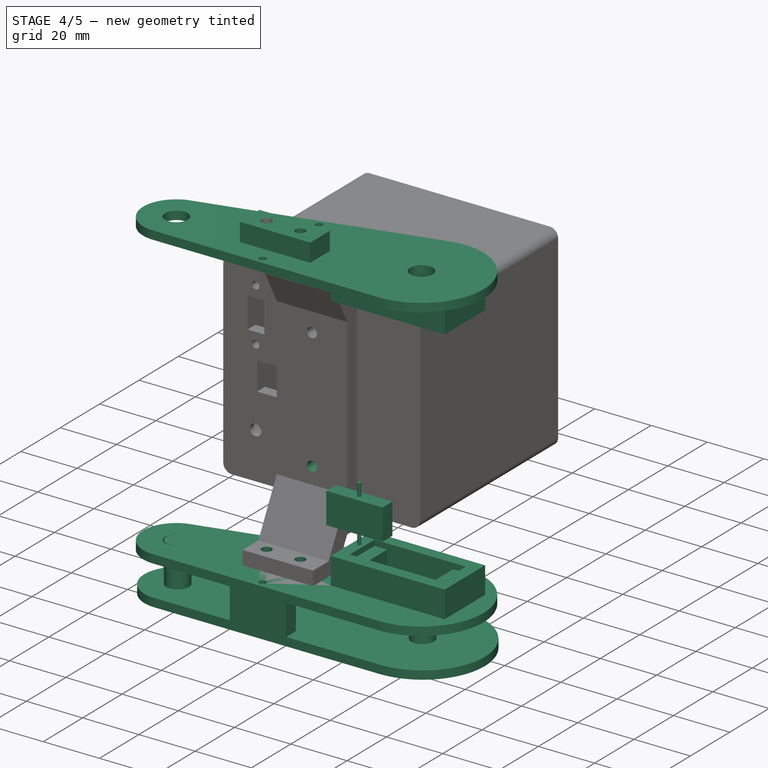
[diagram: stage 4 of 5 — iso view after this stage's code; geometry added in this stage tinted green]
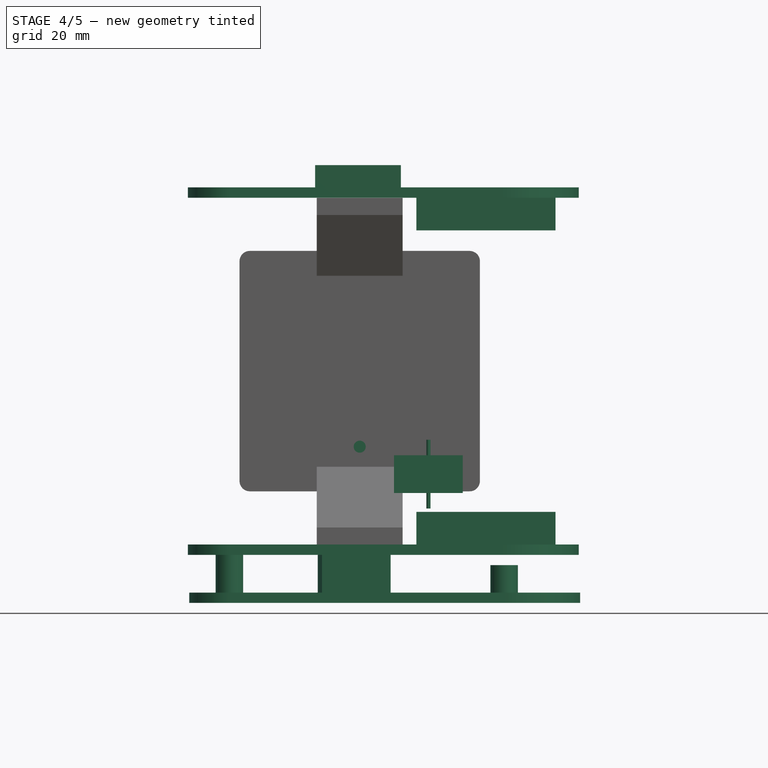
[diagram: stage 4 of 5 — front view after this stage's code; geometry added in this stage tinted green]
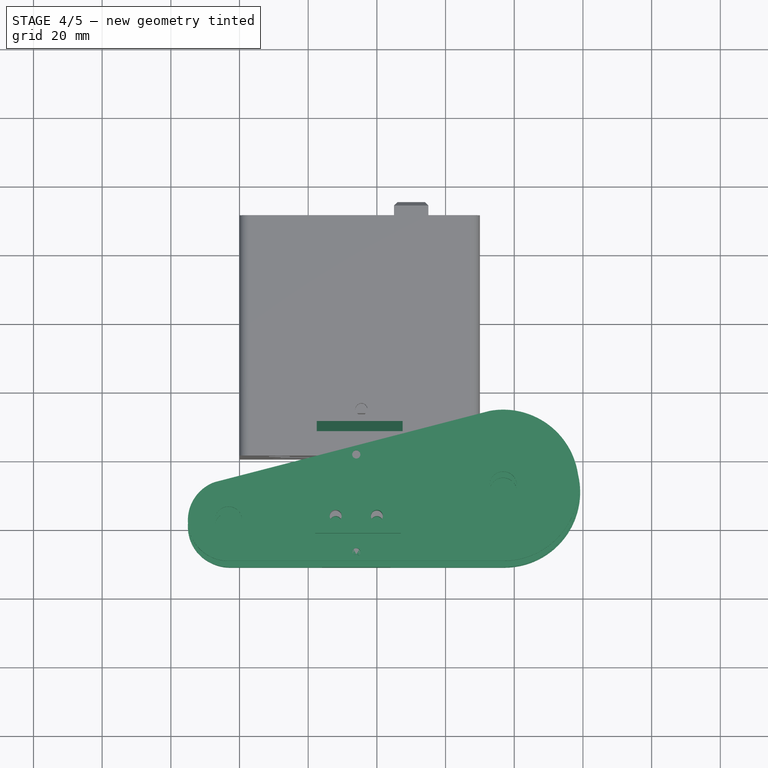
[diagram: stage 4 of 5 — top view after this stage's code; geometry added in this stage tinted green]
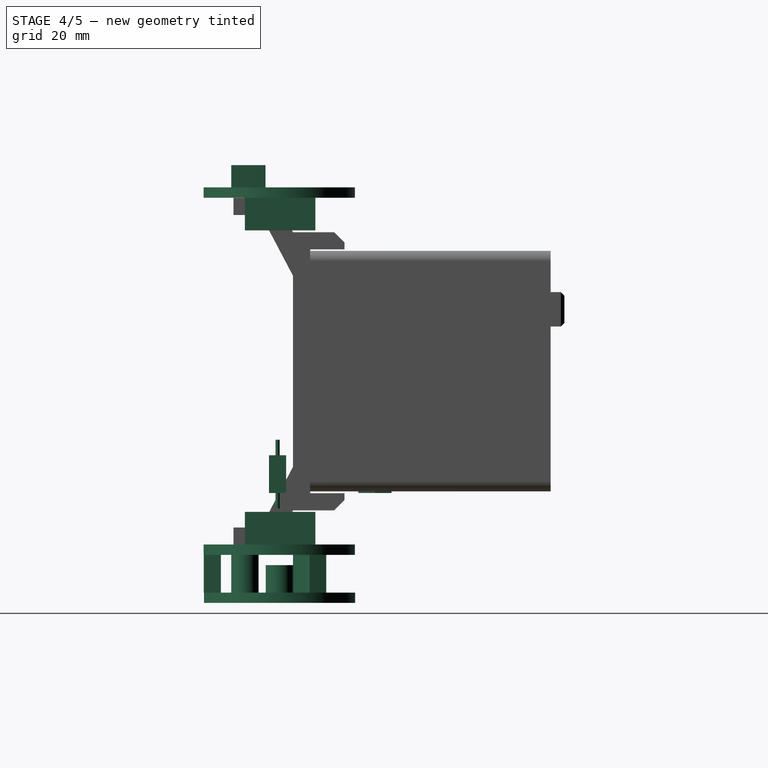
[diagram: stage 4 of 5 — right view after this stage's code; geometry added in this stage tinted green]
FEATURE [Sketcher::SketchObject] Sketch
  Placement = pos=(0,0,-3) rot=(0,0,1;0rad)
  sketch-geometry (6):
    g0: ArcOfCircle CenterX=17.7766 CenterY=-0.192848 CenterZ=0 NormalX=0 NormalY=0 NormalZ=1 Radius=11.82 StartAngle=1.91987 EndAngle=4.71239
    g1: ArcOfCircle CenterX=97.7767 CenterY=10.0072 CenterZ=0 NormalX=0 NormalY=0 NormalZ=1 Radius=22.02 StartAngle=4.71239 EndAngle=8.02851
    g2: LineSegment StartX=17.7766 StartY=-12.0128 StartZ=0 EndX=97.7766 EndY=-12.0128 EndZ=0
    g3: LineSegment StartX=13.7339 StartY=10.9143 StartZ=0 EndX=93.953 EndY=31.6926 EndZ=0
    g4: Circle CenterX=17.7766 CenterY=-0.192848 CenterZ=0 NormalX=0 NormalY=0 NormalZ=1 Radius=4
    g5: Circle CenterX=97.7767 CenterY=10.0072 CenterZ=0 NormalX=0 NormalY=0 NormalZ=1 Radius=4
  constraints (16):
    c: Radius(g0) = 11.82
    c: Radius(g1) = 22.02
    c: Angle(g1) = 3.31613
    c: Angle(g0) = 2.79253
    c: Coincident(g0,g2)
    c: Coincident(g1,g2)
    c: DistanceX(g2) = 80
    c: Horizontal(g2)
    c: Tangent(g2,g0)
    c: Tangent(g2,g1)
    c: Coincident(g0,g3)
    c: Coincident(g1,g3)
    c: Radius(g4) = 4
    c: Coincident(g4,g0)
    c: Radius(g5) = 4
    c: Coincident(g5,g1)
FEATURE [PartDesign::Pad] Pad  label="Tapa"
  Length = 3
  Length2 = 100
  Placement = pos=(0,0,-3) rot=(0,0,1;0rad)
  Sketch = -> Sketch
  Type = 0
FEATURE [App::DocumentObjectGroup] Group002  label="Engranaje Grande"
  Group = -> [Cut007,Pocket001,Pocket002002]
FEATURE [Part::Box] Box006  label="Cube006"
  Height = 9.5
  Length = 40.5
  Width = 20.5
FEATURE [Part::Box] Box007  label="Cube007"
  Height = 2
  Length = 32.5
  Placement = pos=(4,4,0) rot=(0,0,1;0rad)
  Width = 12.5
FEATURE [Part::Cut] Cut008
  Base = -> Box006
  Tool = -> Box007
FEATURE [Part::Box] Box008  label="Cube008"
  Height = 10
  Length = 23.5
  Placement = pos=(8.5,4,0) rot=(0,0,1;0rad)
  Width = 12.5
FEATURE [Part::Cut] Cut009  label="Bancada servo"
  Base = -> Cut008
  Placement = pos=(72.5,0,-12.5) rot=(0,0,1;0rad)
  Tool = -> Box008
FEATURE [Part::Box] Box009  label="Cube009"
  Height = 11
  Length = 20
  Placement = pos=(45,14,-0.5) rot=(0,0,1;0.244346rad)
  Width = 5
FEATURE [Part::Box] Box010  label="Cube010"
  Height = 11
  Length = 20
  Placement = pos=(45,-12,-0.5) rot=(0,0,1;0rad)
  Width = 5
FEATURE [Part::MultiFuse] Fusion006  label="Tapa interior (izquierda)"
  Placement = pos=(0,0,-0.5) rot=(0,0,1;0rad)
  Shapes = -> [Cut009,Pad]
FEATURE [Part::Cylinder] Cylinder011  label="Cylinder046"
  Angle = 360
  Height = 20
  Placement = pos=(55,-9.5,-5) rot=(0,0,1;0rad)
  Radius = 0.6
FEATURE [App::DocumentObjectGroup] Group003  label="Tapa izquierda - exterior"
  Group = -> [Pad001,Pad002,Cut010,Cut012]
FEATURE [Part::Cylinder] Cylinder013  label="Cylinder048"
  Angle = 360
  Height = 10
  Placement = pos=(55,-9.5,-5) rot=(0,0,1;0rad)
  Radius = 1.2
FEATURE [Part::Cut] Cut013
  Base = -> Fusion006
  Tool = -> Cylinder013
FEATURE [Part::Cylinder] Cylinder014  label="Cylinder049"
  Angle = 360
  Height = 10
  Placement = pos=(55,19,-5) rot=(0,0,1;0rad)
  Radius = 1.2
FEATURE [Part::Cut] Cut014  label="cut"
  Base = -> Cut013
  Placement = pos=(-21,-19,89) rot=(0,0,1;0rad)
  Tool = -> Cylinder014
FEATURE [Part::Cylinder] Cylinder018  label="Cylinder053"
  Angle = 360
  Height = 20
  Placement = pos=(35,10,13) rot=(1,0,0;1.5708rad)
  Radius = 1.75
FEATURE [Part::Cut] Cut037
  Base = -> Pad006
  Tool = -> Cylinder017
FEATURE [Part::Cut] Cut038
  Base = -> Cut037
  Tool = -> Cylinder018
FEATURE [Part::Box] Box043  label="Cube042"
  Height = 25
  Length = 10
  Placement = pos=(30,4,22) rot=(0,0,1;0rad)
  Width = 7
FEATURE [Part::Box] Box044  label="Cube043"
  Height = 6
  Length = 8
  Placement = pos=(32,5.5,38.5) rot=(0,0,1;0rad)
  Width = 3
FEATURE [Part::Box] Box045  label="Cube044"
  Height = 6
  Length = 8
  Placement = pos=(32,5.5,26.5) rot=(0,0,1;0rad)
  Width = 3
FEATURE [Part::Cut] Cut043
  Base = -> Box043
  Tool = -> Box044
FEATURE [Part::Cut] Cut044  label="TuercaPuente"
  Base = -> Cut043
  Placement = pos=(69,-53,97) rot=(0.57735,0.57735,-0.57735;4.18879rad)
  Tool = -> Box045
FEATURE [Part::Cylinder] Cylinder022  label="Cylinder057"
  Angle = 360
  Height = 20
  Placement = pos=(40,-18,77) rot=(0,0,1;0rad)
  Radius = 1.75
FEATURE [Part::Cylinder] Cylinder023  label="Cylinder058"
  Angle = 360
  Height = 20
  Placement = pos=(28,-18,-24) rot=(0,0,1;0rad)
  Radius = 1.75
FEATURE [Part::Cylinder] Cylinder024  label="Cylinder059"
  Angle = 360
  Height = 20
  Placement = pos=(40,-18,-24) rot=(0,0,1;0rad)
  Radius = 1.75
FEATURE [Part::Cut] Cut045
  Base = -> Cut038
  Tool = -> Cylinder021
FEATURE [Part::Cut] Cut046
  Base = -> Cut045
  Tool = -> Cylinder022
FEATURE [Part::Cut] Cut047
  Base = -> Cut046
  Tool = -> Cylinder023
FEATURE [Part::Cut] Cut048  label="Cut"
  Base = -> Cut047
  Tool = -> Cylinder024
FEATURE [Part::Cylinder] Cylinder025  label="Cylinder060"
  Angle = 360
  Height = 20
  Placement = pos=(28,-18,77) rot=(0,0,1;0rad)
  Radius = 1.75
FEATURE [Part::Cylinder] Cylinder026  label="Cylinder061"
  Angle = 360
  Height = 20
  Placement = pos=(40,-18,77) rot=(0,0,1;0rad)
  Radius = 1.75
FEATURE [Part::Cut] Cut049
  Base = -> Cut014
  Tool = -> Cylinder025
FEATURE [Part::Cut] Cut050  label="Tapa izquierda - interior"
  Base = -> Cut049
  Tool = -> Cylinder026
FEATURE [Part::Cylinder] Cylinder027  label="Cylinder062"
  Angle = 360
  Height = 20
  Placement = pos=(28,-18,77) rot=(0,0,1;0rad)
  Radius = 1.75
FEATURE [Part::Cylinder] Cylinder028  label="Cylinder063"
  Angle = 360
  Height = 20
  Placement = pos=(40,-18,77) rot=(0,0,1;0rad)
  Radius = 1.75
FEATURE [Part::Cut] Cut051
  Base = -> Cut044
  Tool = -> Cylinder027
FEATURE [Part::Cut] Cut052  label="Tuerca puente"
  Base = -> Cut051
  Placement = pos=(0,0,2) rot=(0,0,1;0rad)
  Tool = -> Cylinder028
FEATURE [Part::Feature] Cut012_solid  label="Tapa con taladros (Solid)"
  shape: bbox 113.8 x 44.1 x 17 mm, 24 faces (baked)
FEATURE [Part::Feature] Cut050_solid  label="Tapa interior izquierda (Solid)"
  shape: bbox 113.8 x 44.04 x 12.5 mm, 32 faces (baked)
FEATURE [Part::Mirroring] Part__Mirroring  label="Tapa derecha - exterior"
  Base = (0,0,0)
  Normal = (0,0,1)
  Placement = pos=(0,0,70) rot=(0,0,1;0rad)
  Source = -> Cut012_solid
FEATURE [Part::Mirroring] Part__Mirroring001  label="Tapa derecha - interior"
  Base = (0,0,0)
  Normal = (0,0,1)
  Placement = pos=(0,0,70) rot=(0,0,1;0rad)
  Source = -> Cut050_solid
FEATURE [Part::Box] Box048  label="Cube047"
  Height = 31
  Length = 31
  Placement = pos=(30.5,7,4.5) rot=(0,0,1;0rad)
  Width = 59
FEATURE [PartDesign::Fillet] Fillet002  label="portapilas"
  Base = -> Box048 [Edge4,Edge8,Edge6,Edge2]
  Placement = pos=(30.5,7,4.5) rot=(0,0,1;0rad)
  Radius = 4
FEATURE [Part::Cylinder] Cylinder033  label="Cylinder065"
  Angle = 360
  Height = 15
  Placement = pos=(35.5,13.5,59) rot=(0,0,1;0rad)
  Radius = 1.75
FEATURE [Part::Cylinder] Cylinder034  label="Cylinder066"
  Angle = 360
  Height = 15
  Placement = pos=(24.5,13.5,-2) rot=(0,0,1;0rad)
  Radius = 1.75
FEATURE [Part::Cut] Cut070
  Tool = -> Cylinder033
FEATURE [Part::Cut] Cut071
  Base = -> Cut070
  Tool = -> Cylinder034
FEATURE [PartDesign::Chamfer] Chamfer006  label="puente"
  Base = -> Cut048 [Edge50,Edge1]
  Size = 3
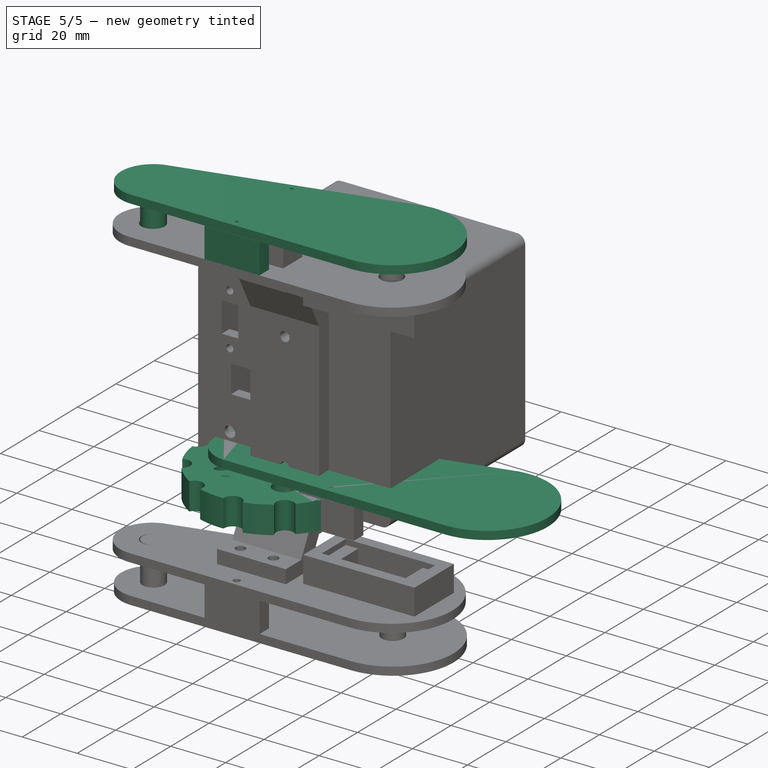
[diagram: stage 5 of 5 — iso view after this stage's code; geometry added in this stage tinted green]
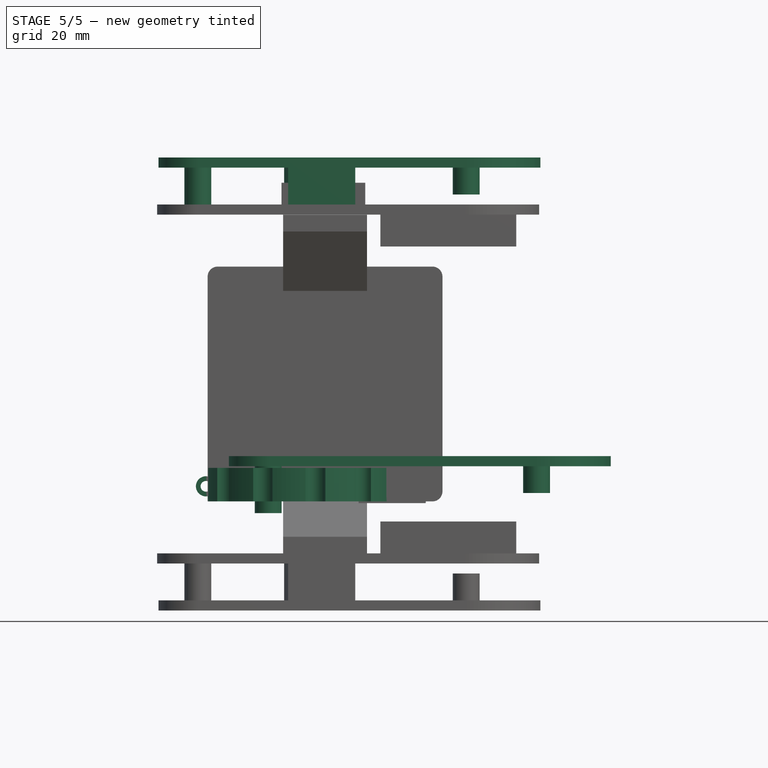
[diagram: stage 5 of 5 — front view after this stage's code; geometry added in this stage tinted green]
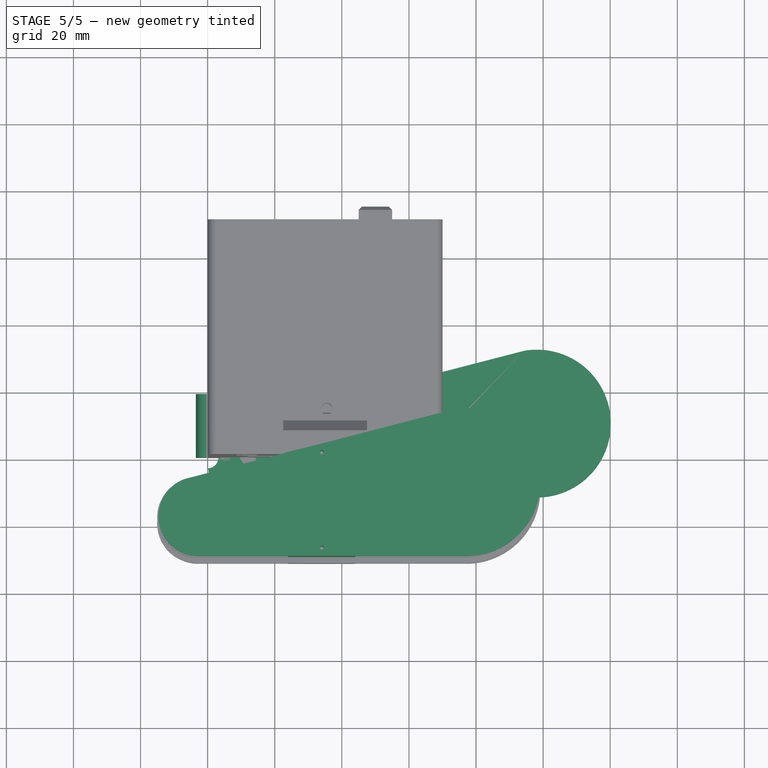
[diagram: stage 5 of 5 — top view after this stage's code; geometry added in this stage tinted green]
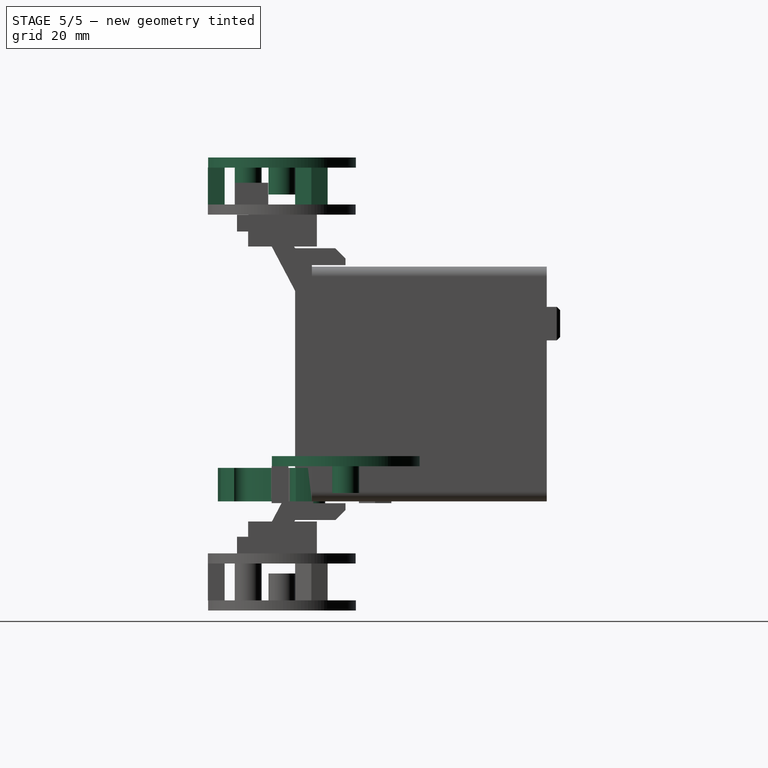
[diagram: stage 5 of 5 — right view after this stage's code; geometry added in this stage tinted green]
FEATURE [Part::Cylinder] Cylinder
  Angle = 360
  Height = 10
  Radius = 3.2
FEATURE [Part::FeaturePython] Array  label="Dientes"  # Draft array (typed FeaturePython)
  Angle = 360
  ArrayType = 1
  Axis = (0,0,1)
  Base = -> Cylinder
  Center = (17.82,0,0)
  Fuse = false
  IntervalAxis = (0,0,0)
  IntervalX = (1,0,0)
  IntervalY = (0,1,0)
  IntervalZ = (0,0,0)
  NumberPolar = 7
  NumberX = 2
  NumberY = 2
  NumberZ = 1
FEATURE [Part::Cylinder] Cylinder001  label="Cuerpo"
  Angle = 360
  Height = 10
  Placement = pos=(17.82,0,0) rot=(0,0,1;0rad)
  Radius = 17.82
FEATURE [Part::Cut] Cut  label="Base001"
  Base = -> Cylinder001
  Tool = -> Array
FEATURE [Part::Cylinder] Cylinder002  label="Cylinder001"
  Angle = 360
  Height = 19
  Placement = pos=(-0.5,19,4.5) rot=(1,0,0;1.5708rad)
  Radius = 1.6
FEATURE [Part::Box] Box  label="Cube"
  Height = 8
  Length = 11
  Width = 19
FEATURE [PartDesign::Chamfer] Chamfer
  Base = -> Box [Edge6]
  Size = 3
FEATURE [PartDesign::Chamfer] Chamfer001
  Base = -> Chamfer [Edge15]
  Size = 3
FEATURE [Part::Box] Box001  label="Cube001"
  Height = 7
  Length = 15
  Placement = pos=(0,4,2) rot=(0,0,1;0rad)
  Width = 11
FEATURE [Part::Box] Box002  label="Cube002"
  Height = 4
  Length = 10
  Placement = pos=(5,-6,0) rot=(0,0,1;0rad)
  Width = 6
FEATURE [Part::Cylinder] Cylinder003  label="Cylinder002"
  Angle = 360
  Height = 6
  Placement = pos=(15.5,0,4.5) rot=(1,0,0;1.5708rad)
  Radius = 1.5
FEATURE [Part::Cylinder] Cylinder004  label="Cylinder003"
  Angle = 360
  Height = 6
  Placement = pos=(15,0,4.5) rot=(1,0,0;1.5708rad)
  Radius = 3
FEATURE [Part::MultiFuse] Fusion
  Placement = pos=(0.5,0,0) rot=(0,0,1;0rad)
  Shapes = -> [Cylinder004,Box002]
FEATURE [Part::Cut] Cut002  label="Lado 1 Eslabon"
  Base = -> Fusion
  Tool = -> Cylinder003
FEATURE [PartDesign::Chamfer] Chamfer002
  Base = -> Chamfer [Edge15]
  Size = 3
FEATURE [Part::Cut] Cut003
  Base = -> Chamfer001
  Tool = -> Box001
FEATURE [PartDesign::Chamfer] Chamfer003
  Base = -> Cut003 [Edge30]
  Size = 3
FEATURE [PartDesign::Chamfer] Chamfer004
  Base = -> Chamfer003 [Edge31]
  Size = 3
FEATURE [Part::Cylinder] Cylinder005  label="Cylinder004"
  Angle = 360
  Height = 19
  Placement = pos=(-0.5,19,4.5) rot=(1,0,0;1.5708rad)
  Radius = 3
FEATURE [Part::MultiFuse] Fusion001
  Shapes = -> [Cylinder005,Chamfer004]
FEATURE [Part::Cut] Cut004  label="Central Eslabon"
  Base = -> Fusion001
  Tool = -> Cylinder002
FEATURE [Part::Box] Box003  label="Cube003"
  Height = 4
  Length = 10
  Placement = pos=(5.5,-6,0) rot=(0,0,1;0rad)
  Width = 6
FEATURE [Part::Cylinder] Cylinder006  label="Cylinder005"
  Angle = 360
  Height = 6
  Placement = pos=(15.5,0,4.5) rot=(1,0,0;1.5708rad)
  Radius = 3
FEATURE [Part::Box] Box004  label="Cube004"
  Height = 4
  Length = 10
  Placement = pos=(5,19,0) rot=(0,0,1;0rad)
  Width = 6
FEATURE [Part::Cylinder] Cylinder007  label="Cylinder029"
  Angle = 360
  Height = 6
  Placement = pos=(15.5,25,4.5) rot=(1,0,0;1.5708rad)
  Radius = 1.5
FEATURE [Part::Cylinder] Cylinder008  label="Cylinder007"
  Angle = 360
  Height = 6
  Placement = pos=(15,25,4.5) rot=(1,0,0;1.5708rad)
  Radius = 3
FEATURE [Part::MultiFuse] Fusion002
  Placement = pos=(0.5,0,0) rot=(0,0,1;0rad)
  Shapes = -> [Cylinder008,Box004]
FEATURE [Part::Cut] Cut005  label="Lado 1 Eslabon001"
  Base = -> Fusion002
  Tool = -> Cylinder007
FEATURE [Part::Box] Box005  label="Cube005"
  Height = 8
  Length = 11
  Placement = pos=(11,-0.5,0) rot=(0,0,1;0rad)
  Width = 20
FEATURE [Part::MultiFuse] Fusion003
  Shapes = -> [Cut002,Cut004,Cut005]
FEATURE [Part::Cut] Cut006  label="Eslabon"
  Base = -> Fusion003
  Tool = -> Box005
FEATURE [App::DocumentObjectGroup] Group001  label="Eslabón"
  Group = -> [Box,Cut003,Box003,Chamfer,Chamfer003,Chamfer002,Cylinder006,Cut006]
FEATURE [Part::Cylinder] Cylinder009  label="Cylinder045"
  Angle = 360
  Height = 10
  Radius = 3.2
FEATURE [Part::FeaturePython] Array001  label="Dientes001"  # Draft array (typed FeaturePython)
  Angle = 360
  ArrayType = 1
  Axis = (0,0,1)
  Base = -> Cylinder009
  Center = (28.02,0,0)
  Fuse = false
  IntervalAxis = (0,0,0)
  IntervalX = (1,0,0)
  IntervalY = (0,1,0)
  IntervalZ = (0,0,0)
  NumberPolar = 11
  NumberX = 2
  NumberY = 2
  NumberZ = 1
FEATURE [Part::Cylinder] Cylinder010  label="Cuerpo001"
  Angle = 360
  Height = 10
  Placement = pos=(28.02,0,0) rot=(0,0,1;0rad)
  Radius = 28.02
FEATURE [Part::Cut] Cut007  label="Base"
  Base = -> Cylinder010
  Tool = -> Array001
FEATURE [Sketcher::SketchObject] Sketch001
  Placement = pos=(0,0,10) rot=(0,0,1;0rad)
  Support = -> Cut [Face5]
  sketch-geometry (8):
    g0: Circle CenterX=17.82 CenterY=-0.034345 CenterZ=0 NormalX=0 NormalY=0 NormalZ=1 Radius=4.5
    g1: Circle CenterX=15.6211 CenterY=9.35508 CenterZ=0 NormalX=0 NormalY=0 NormalZ=1 Radius=3
    g2: Circle CenterX=23.6691 CenterY=7.91055 CenterZ=0 NormalX=0 NormalY=0 NormalZ=1 Radius=3
    g3: Circle CenterX=28.2091 CenterY=-0.137526 CenterZ=0 NormalX=0 NormalY=0 NormalZ=1 Radius=3
    g4: Circle CenterX=23.8755 CenterY=-8.18561 CenterZ=0 NormalX=0 NormalY=0 NormalZ=1 Radius=3
    g5: Circle CenterX=15.4147 CenterY=-10.0429 CenterZ=0 NormalX=0 NormalY=0 NormalZ=1 Radius=3
    g6: Circle CenterX=8.19206 CenterY=-4.67747 CenterZ=0 NormalX=0 NormalY=0 NormalZ=1 Radius=3
    g7: Circle CenterX=8.70796 CenterY=4.19606 CenterZ=0 NormalX=0 NormalY=0 NormalZ=1 Radius=3
  constraints (9):
    c: Radius(g0) = 4.5
    c: DistanceX(g-1,g0) = 17.82
    c: Radius(g1) = 3
    c: Radius(g2) = 3
    c: Radius(g3) = 3
    c: Radius(g4) = 3
    c: Radius(g5) = 3
    c: Radius(g6) = 3
    c: Radius(g7) = 3
FEATURE [PartDesign::Pocket] Pocket  label="Base001 aligerado con agujeros"
  Length = 5
  Sketch = -> Sketch001
  Type = 1
FEATURE [App::DocumentObjectGroup] Group  label="Engranaje Pequeño"
  Group = -> [Cut,Pocket]
FEATURE [Sketcher::SketchObject] Sketch002
  Placement = pos=(0,0,10) rot=(0,0,1;0rad)
  Support = -> Cut007 [Face5]
  sketch-geometry (6):
    g0: Circle CenterX=28.3529 CenterY=-0.0479056 CenterZ=0 NormalX=0 NormalY=0 NormalZ=1 Radius=4.5
    g1: Circle CenterX=18.3763 CenterY=-11.9048 CenterZ=0 NormalX=0 NormalY=0 NormalZ=1 Radius=4
    g2: Circle CenterX=41.523 CenterY=8.03176 CenterZ=0 NormalX=0 NormalY=0 NormalZ=1 Radius=4
    g3: Circle CenterX=38.9887 CenterY=-10.9756 CenterZ=0 NormalX=0 NormalY=0 NormalZ=1 Radius=4
    g4: Circle CenterX=12.8008 CenterY=4.23029 CenterZ=0 NormalX=0 NormalY=0 NormalZ=1 Radius=4
    g5: Circle CenterX=25.8842 CenterY=14.927 CenterZ=0 NormalX=0 NormalY=0 NormalZ=1 Radius=4
  constraints (6):
    c: Radius(g0) = 4.5
    c: Radius(g1) = 4
    c: Radius(g2) = 4
    c: Radius(g3) = 4
    c: Radius(g4) = 4
    c: Radius(g5) = 4
FEATURE [PartDesign::Pocket] Pocket001  label="Aligerado con agujeros"
  Length = 5
  Sketch = -> Sketch002
  Type = 1
FEATURE [Sketcher::SketchObject] Sketch003
  Placement = pos=(0,0,0) rot=(1,0,0;3.14159rad)
  Support = -> Pocket001 [Face3]
  sketch-geometry (1):
    g0: Circle CenterX=28.02 CenterY=0.027806 CenterZ=0 NormalX=0 NormalY=0 NormalZ=1 Radius=10
  constraints (2):
    c: Radius(g0) = 10
    c: DistanceX(g-1,g0) = 28.02
FEATURE [PartDesign::Pocket] Pocket002002  label="Taladro servohorn"
  Length = 2
  Sketch = -> Sketch003
  Type = 0
FEATURE [Sketcher::SketchObject] Sketch004
  Placement = pos=(0,0,10.5) rot=(0,0,1;0rad)
  sketch-geometry (4):
    g0: ArcOfCircle CenterX=18.1632 CenterY=-0.115589 CenterZ=0 NormalX=0 NormalY=0 NormalZ=1 Radius=11.82 StartAngle=1.91987 EndAngle=4.71239
    g1: ArcOfCircle CenterX=98.1632 CenterY=10.0844 CenterZ=0 NormalX=0 NormalY=0 NormalZ=1 Radius=22.02 StartAngle=4.71239 EndAngle=8.02851
    g2: LineSegment StartX=18.1632 StartY=-11.9356 StartZ=0 EndX=98.1632 EndY=-11.9356 EndZ=0
    g3: LineSegment StartX=14.1205 StartY=10.9916 StartZ=0 EndX=94.3395 EndY=31.7699 EndZ=0
  constraints (12):
    c: Radius(g0) = 11.82
    c: Radius(g1) = 22.02
    c: Angle(g1) = 3.31613
    c: Angle(g0) = 2.79253
    c: Coincident(g0,g2)
    c: Coincident(g1,g2)
    c: DistanceX(g2) = 80
    c: Horizontal(g2)
    c: Tangent(g2,g0)
    c: Tangent(g2,g1)
    c: Coincident(g0,g3)
    c: Coincident(g1,g3)
FEATURE [PartDesign::Pad] Pad001
  Length = 3
  Length2 = 100
  Placement = pos=(0,0,10.5) rot=(0,0,1;0rad)
  Sketch = -> Sketch004
  Type = 0
FEATURE [Sketcher::SketchObject] Sketch005
  Placement = pos=(0,0,10.5) rot=(1,0,0;3.14159rad)
  Support = -> Pad001 [Face5]
  sketch-geometry (1):
    g0: Circle CenterX=98.0594 CenterY=-10.0638 CenterZ=0 NormalX=0 NormalY=0 NormalZ=1 Radius=4
  constraints (3):
    c: Radius(g0) = 4
    c: DistanceY(g-1,g0) = -10.0638
    c: DistanceX(g-1,g0) = 98.0594
FEATURE [PartDesign::Pad] Pad002
  Length = 8
  Length2 = 100
  Placement = pos=(0,0,10.5) rot=(0,0,1;0rad)
  Sketch = -> Sketch005
  Type = 0
FEATURE [Sketcher::SketchObject] Sketch006
  Placement = pos=(0,0,10.5) rot=(1,0,0;3.14159rad)
  Support = -> Pad002 [Face4]
  sketch-geometry (1):
    g0: Circle CenterX=18.0594 CenterY=0 CenterZ=0 NormalX=0 NormalY=0 NormalZ=1 Radius=4
  constraints (3):
    c: Radius(g0) = 4
    c: DistanceX(g-1,g0) = 18.0594
    c: DistanceY(g-1,g0) = 0
FEATURE [PartDesign::Pad] Pad003
  Length = 14
  Length2 = 100
  Placement = pos=(0,0,10.5) rot=(0,0,1;0rad)
  Sketch = -> Sketch006
  Type = 0
FEATURE [Part::MultiFuse] Fusion005
  Shapes = -> [Box009,Box010,Pad003]
FEATURE [Part::Cylinder] Cylinder012  label="Cylinder047"
  Angle = 360
  Height = 20
  Placement = pos=(55,19,-5) rot=(0,0,1;0rad)
  Radius = 0.6
FEATURE [Part::Cut] Cut011
  Base = -> Fusion005
  Tool = -> Cylinder011
FEATURE [Part::Cut] Cut012  label="Tapa con taladros"
  Base = -> Cut011
  Placement = pos=(-21,-19,89) rot=(0,0,1;0rad)
  Tool = -> Cylinder012
FEATURE [Part::Cut] Cut010
  Base = -> Fusion005
  Tool = -> Cylinder011
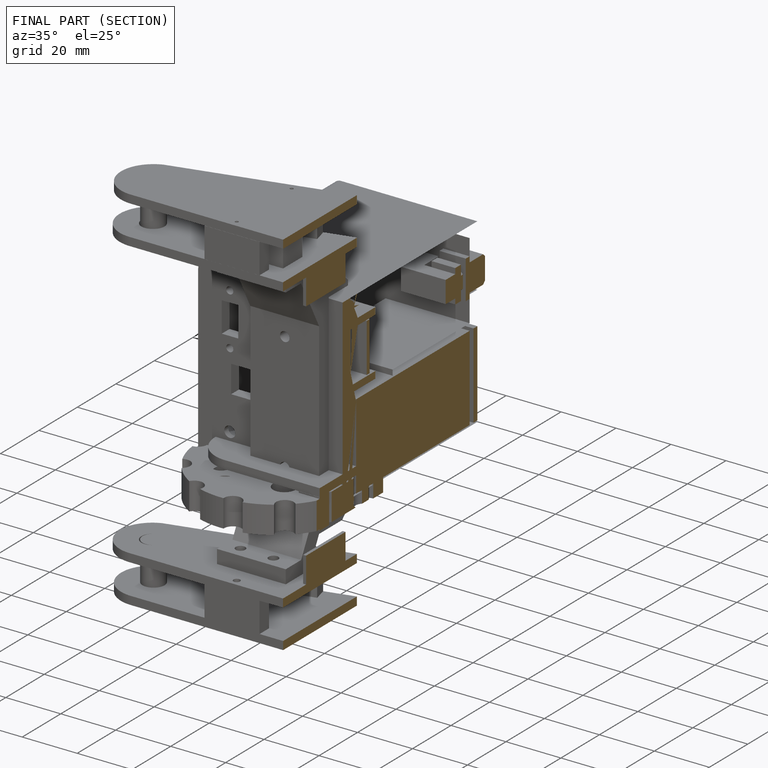
[diagram: finished part — half-section view (interior)]
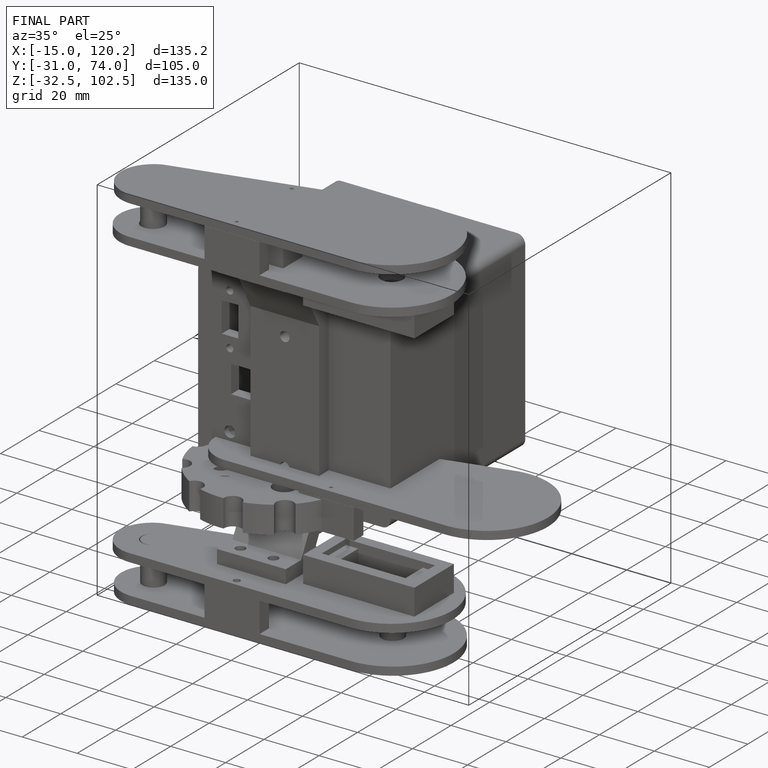
[diagram: finished part — iso view with bounding-box wireframe]
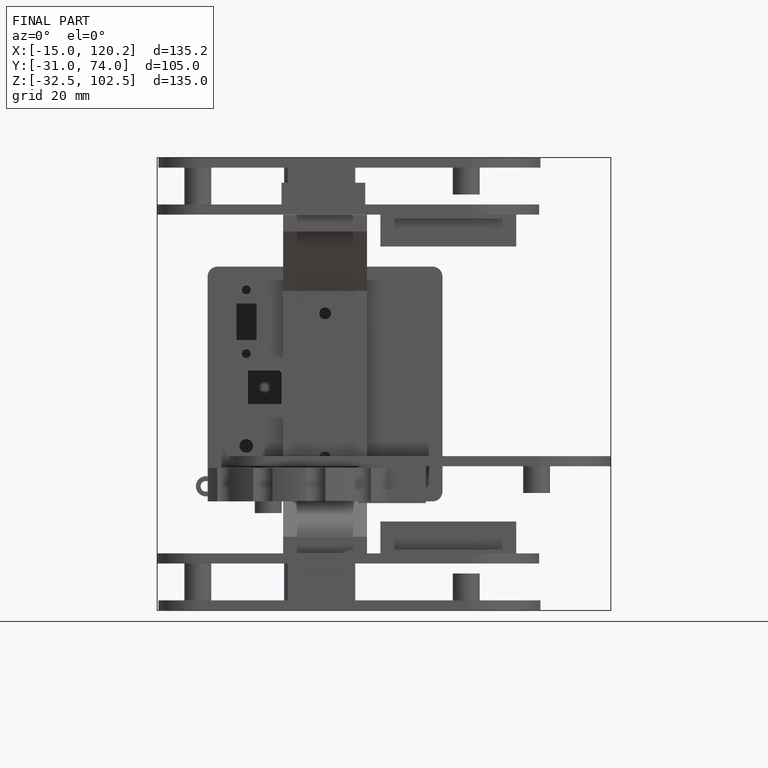
[diagram: finished part — front view with bounding-box wireframe]
